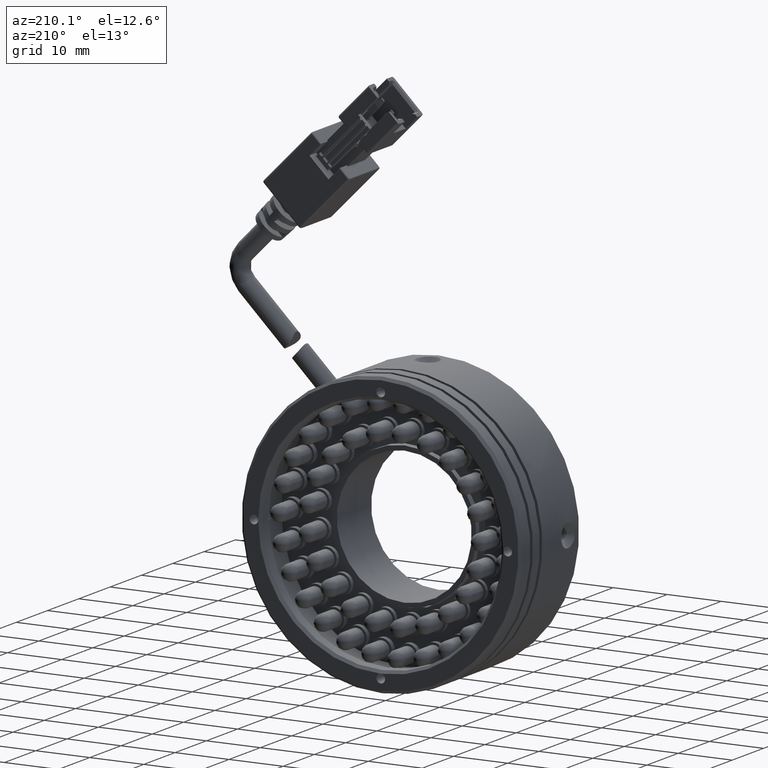
[diagram: clean part render]
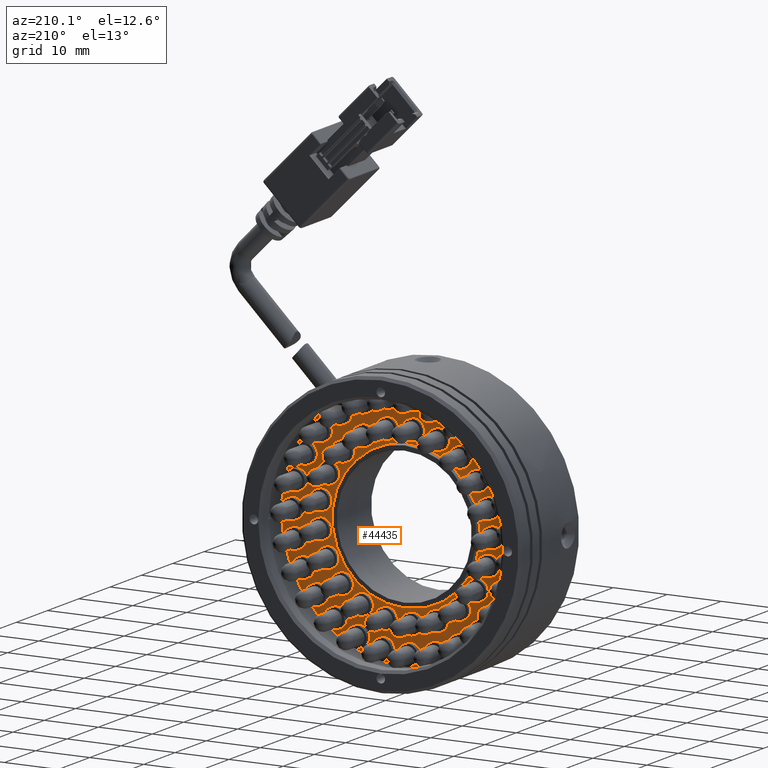
[diagram: same view with one face highlighted and labeled with its STEP entity id]
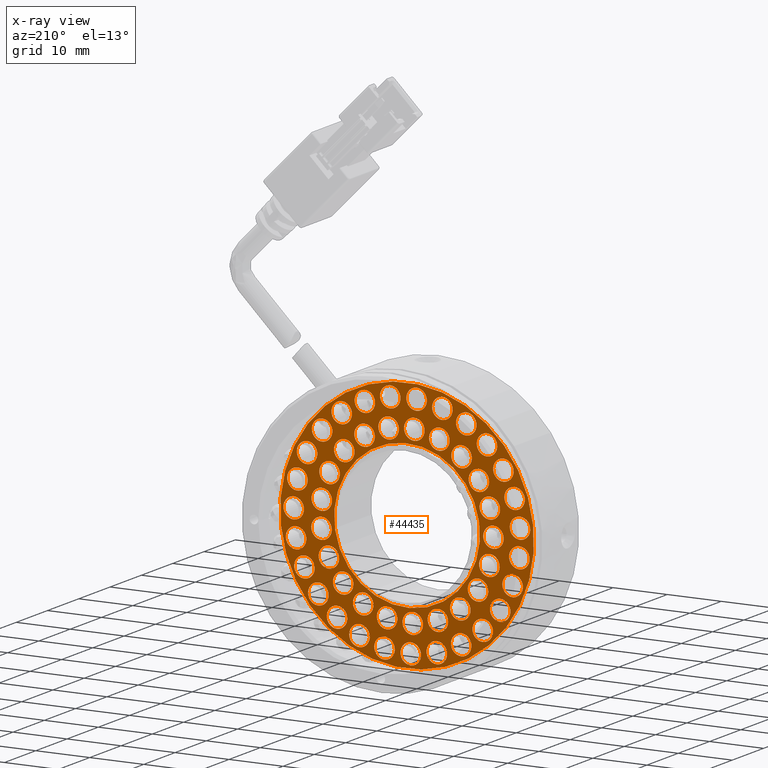
[diagram: x-ray of the same camera — body ghosted, the highlighted face saturated]
A machine part, auxiliary view. The second image highlights one B-rep face of the part: STEP entity #44435.
The next image is the same camera in x-ray: the body ghosted, the highlighted face saturated — about 0% of this face is hidden behind the body in this view.
In plain terms, the highlighted planar face has unit normal (0, -1, -0).
Its self-contained STEP definition (entity closure, byte-faithful):
#40 = EDGE_LOOP ( 'NONE', ( #45180, #35704 ) ) ;
#271 = FACE_BOUND ( 'NONE', #37725, .T. ) ;
#273 = DIRECTION ( 'NONE',  ( -0.9964823369000800300, 0.0000000000000000000, -0.08380305630557503800 ) ) ;
#293 = ORIENTED_EDGE ( 'NONE', *, *, #14784, .F. ) ;
#396 = VERTEX_POINT ( 'NONE', #26149 ) ;
#440 = VERTEX_POINT ( 'NONE', #21771 ) ;
#442 = AXIS2_PLACEMENT_3D ( 'NONE', #19975, #46350, #23719 ) ;
#478 = DIRECTION ( 'NONE',  ( -0.9964823369000800300, 0.0000000000000000000, -0.08380305630557498300 ) ) ;
#498 = ORIENTED_EDGE ( 'NONE', *, *, #4205, .F. ) ;
#549 = EDGE_LOOP ( 'NONE', ( #41906, #45452 ) ) ;
#579 = VERTEX_POINT ( 'NONE', #7631 ) ;
#614 = CARTESIAN_POINT ( 'NONE',  ( 14.89117897205807900, 4.580076170238128500, 13.90784564497379500 ) ) ;
#655 = CARTESIAN_POINT ( 'NONE',  ( -20.38551392721298700, 4.580076170238128500, -7.687612896666104600 ) ) ;
#670 = DIRECTION ( 'NONE',  ( -0.9964823369000801500, 0.0000000000000000000, -0.08380305630557502400 ) ) ;
#681 = DIRECTION ( 'NONE',  ( -1.152656876524891300E-021, 1.000000000000000000, 9.025018899253366500E-022 ) ) ;
#738 = CARTESIAN_POINT ( 'NONE',  ( -13.98047631714871900, 4.580076170238128500, -9.133067906006788300 ) ) ;
#846 = FACE_BOUND ( 'NONE', #3887, .T. ) ;
#900 = ORIENTED_EDGE ( 'NONE', *, *, #38243, .F. ) ;
#956 = EDGE_CURVE ( 'NONE', #2182, #10137, #13600, .T. ) ;
#1002 = CIRCLE ( 'NONE', #26096, 1.900000000001511400 ) ;
#1012 = AXIS2_PLACEMENT_3D ( 'NONE', #655, #26952, #4434 ) ;
#1042 = CARTESIAN_POINT ( 'NONE',  ( -2.603100659162442400, 4.580076170238128500, 20.92612907490169900 ) ) ;
#1102 = CIRCLE ( 'NONE', #36138, 1.900000000000863700 ) ;
#1220 = DIRECTION ( 'NONE',  ( -1.152656876524891300E-021, 1.000000000000000000, 9.025018899253366500E-022 ) ) ;
#1311 = EDGE_CURVE ( 'NONE', #26410, #31541, #21185, .T. ) ;
#1363 = EDGE_LOOP ( 'NONE', ( #23632, #14687 ) ) ;
#1377 = AXIS2_PLACEMENT_3D ( 'NONE', #39937, #17386, #43771 ) ;
#1434 = FACE_BOUND ( 'NONE', #34023, .T. ) ;
#1442 = AXIS2_PLACEMENT_3D ( 'NONE', #738, #27047, #4520 ) ;
#1498 = CIRCLE ( 'NONE', #41575, 1.900000000000177500 ) ;
#1530 = VERTEX_POINT ( 'NONE', #26559 ) ;
#1643 = ORIENTED_EDGE ( 'NONE', *, *, #48740, .F. ) ;
#1793 = EDGE_LOOP ( 'NONE', ( #14786, #16582 ) ) ;
#1848 = VERTEX_POINT ( 'NONE', #21704 ) ;
#1922 = EDGE_LOOP ( 'NONE', ( #18046, #19813 ) ) ;
#1981 = DIRECTION ( 'NONE',  ( -1.152656876524891300E-021, 1.000000000000000000, 9.025018899253366500E-022 ) ) ;
#2018 = DIRECTION ( 'NONE',  ( -1.152656876524891300E-021, 1.000000000000000000, 9.025018899253366500E-022 ) ) ;
#2026 = VERTEX_POINT ( 'NONE', #45682 ) ;
#2037 = ORIENTED_EDGE ( 'NONE', *, *, #24784, .F. ) ;
#2064 = VERTEX_POINT ( 'NONE', #29343 ) ;
#2078 = CARTESIAN_POINT ( 'NONE',  ( -14.19552819475613800, 4.580076170238128500, -4.695816096961787700 ) ) ;
#2094 = EDGE_CURVE ( 'NONE', #34856, #46240, #12209, .T. ) ;
#2182 = VERTEX_POINT ( 'NONE', #37917 ) ;
#2398 = DIRECTION ( 'NONE',  ( -1.152656876524891300E-021, 1.000000000000000000, 9.025018899253366500E-022 ) ) ;
#2462 = VERTEX_POINT ( 'NONE', #28781 ) ;
#2520 = CARTESIAN_POINT ( 'NONE',  ( 21.35269690864482300, 4.580076170238128500, 5.526137877552163700 ) ) ;
#2621 = FACE_BOUND ( 'NONE', #15246, .T. ) ;
#2660 = VERTEX_POINT ( 'NONE', #37030 ) ;
#2682 = VERTEX_POINT ( 'NONE', #31924 ) ;
#2763 = CIRCLE ( 'NONE', #14751, 1.900000000000736700 ) ;
#2826 = CIRCLE ( 'NONE', #19028, 1.900000000000337900 ) ;
#2926 = CARTESIAN_POINT ( 'NONE',  ( 8.892741670994723800, 4.580076170238128500, 10.82983727359978600 ) ) ;
#3089 = CARTESIAN_POINT ( 'NONE',  ( 9.090840787455613600, 4.580076170238128500, -10.93478881608550800 ) ) ;
#3140 = CARTESIAN_POINT ( 'NONE',  ( 5.082404580784493800, 4.580076170238128500, 19.33087177230465100 ) ) ;
#3163 = EDGE_CURVE ( 'NONE', #25503, #23795, #11947, .T. ) ;
#3217 = VERTEX_POINT ( 'NONE', #2926 ) ;
#3288 = CIRCLE ( 'NONE', #36782, 1.900000000000454700 ) ;
#3392 = ORIENTED_EDGE ( 'NONE', *, *, #40691, .F. ) ;
#3393 = CARTESIAN_POINT ( 'NONE',  ( 13.10578914070426900, 4.580076170238128500, -2.399805671933559600 ) ) ;
#3398 = CARTESIAN_POINT ( 'NONE',  ( -18.08586376727523500, 4.580076170238128500, -11.98715162663398600 ) ) ;
#3486 = VERTEX_POINT ( 'NONE', #39404 ) ;
#3661 = DIRECTION ( 'NONE',  ( -0.9964823369000800300, 0.0000000000000000000, -0.08380305630557533000 ) ) ;
#3770 = CIRCLE ( 'NONE', #30738, 1.900000000002028100 ) ;
#3807 = FACE_BOUND ( 'NONE', #10457, .T. ) ;
#3813 = VERTEX_POINT ( 'NONE', #33848 ) ;
#3887 = EDGE_LOOP ( 'NONE', ( #14678, #35795 ) ) ;
#4019 = ORIENTED_EDGE ( 'NONE', *, *, #26300, .F. ) ;
#4093 = EDGE_CURVE ( 'NONE', #6165, #33719, #10632, .T. ) ;
#4143 = DIRECTION ( 'NONE',  ( -1.152656876524891300E-021, 1.000000000000000000, 9.025018899253366500E-022 ) ) ;
#4151 = CIRCLE ( 'NONE', #29594, 1.900000000002129100 ) ;
#4200 = CARTESIAN_POINT ( 'NONE',  ( 0.3769177454027842800, 4.580076170238128500, 20.60868936125990600 ) ) ;
#4205 = EDGE_CURVE ( 'NONE', #10137, #2182, #7058, .T. ) ;
#4210 = VERTEX_POINT ( 'NONE', #33735 ) ;
#4362 = AXIS2_PLACEMENT_3D ( 'NONE', #37879, #15309, #41694 ) ;
#4391 = DIRECTION ( 'NONE',  ( -0.9964823369000800300, 0.0000000000000000000, -0.08380305630557503800 ) ) ;
#4401 = AXIS2_PLACEMENT_3D ( 'NONE', #31617, #9093, #35438 ) ;
#4434 = DIRECTION ( 'NONE',  ( -0.9964823369000800300, 0.0000000000000000000, -0.08380305630557514900 ) ) ;
#4480 = EDGE_CURVE ( 'NONE', #23795, #25503, #37054, .T. ) ;
#4520 = DIRECTION ( 'NONE',  ( -0.9964823369000800300, 0.0000000000000000000, -0.08380305630557484400 ) ) ;
#4624 = EDGE_LOOP ( 'NONE', ( #10502, #14656 ) ) ;
#4670 = EDGE_CURVE ( 'NONE', #5050, #36198, #42961, .T. ) ;
#4672 = CARTESIAN_POINT ( 'NONE',  ( -1.524647172020224200, 4.580076170238128500, -20.98894183765285200 ) ) ;
#4746 = CIRCLE ( 'NONE', #7833, 1.900000000000459800 ) ;
#4832 = EDGE_CURVE ( 'NONE', #39950, #32525, #34610, .T. ) ;
#4836 = DIRECTION ( 'NONE',  ( -0.9964823369000800300, 0.0000000000000000000, -0.08380305630557498300 ) ) ;
#4855 = AXIS2_PLACEMENT_3D ( 'NONE', #41933, #19313, #45710 ) ;
#4857 = VERTEX_POINT ( 'NONE', #37519 ) ;
#4862 = DIRECTION ( 'NONE',  ( -1.152656876524891300E-021, 1.000000000000000000, 9.025018899253366500E-022 ) ) ;
#4871 = EDGE_LOOP ( 'NONE', ( #29446, #41882 ) ) ;
#4887 = ORIENTED_EDGE ( 'NONE', *, *, #13267, .F. ) ;
#4900 = DIRECTION ( 'NONE',  ( -0.9964823369000801500, 0.0000000000000000000, -0.08380305630557506600 ) ) ;
#4950 = DIRECTION ( 'NONE',  ( 1.152656876524891300E-021, -1.000000000000000000, -9.025018899253366500E-022 ) ) ;
#4965 = FACE_BOUND ( 'NONE', #24864, .T. ) ;
#4996 = CARTESIAN_POINT ( 'NONE',  ( -14.28137512213339200, 4.580076170238128500, 4.735958807862336300 ) ) ;
#5050 = VERTEX_POINT ( 'NONE', #13468 ) ;
#5059 = CARTESIAN_POINT ( 'NONE',  ( -0.8432364767453662800, 4.580076170238128500, 1.316013914325325100E-014 ) ) ;
#5157 = DIRECTION ( 'NONE',  ( -1.152656876524891300E-021, 1.000000000000000000, 9.025018899253366500E-022 ) ) ;
#5167 = CARTESIAN_POINT ( 'NONE',  ( -15.64242714237866800, 4.580076170238128500, 14.89912600263049200 ) ) ;
#5289 = ORIENTED_EDGE ( 'NONE', *, *, #20648, .F. ) ;
#5314 = EDGE_CURVE ( 'NONE', #15347, #17400, #40885, .T. ) ;
#5416 = CIRCLE ( 'NONE', #33349, 23.50000000000000400 ) ;
#5425 = AXIS2_PLACEMENT_3D ( 'NONE', #45122, #22523, #48900 ) ;
#5477 = CARTESIAN_POINT ( 'NONE',  ( 3.334103439311888500, 4.580076170238128500, -20.58032631485016500 ) ) ;
#5631 = DIRECTION ( 'NONE',  ( -1.152656876524891300E-021, 1.000000000000000000, 9.025018899253366500E-022 ) ) ;
#5688 = CARTESIAN_POINT ( 'NONE',  ( 17.67442570085188800, 4.580076170238128500, 9.904351946308342000 ) ) ;
#5696 = CARTESIAN_POINT ( 'NONE',  ( -0.7097842190522906100, 4.580076170238128500, 21.08535488188228900 ) ) ;
#5938 = ORIENTED_EDGE ( 'NONE', *, *, #4670, .F. ) ;
#6003 = CIRCLE ( 'NONE', #45094, 1.900000000000337900 ) ;
#6132 = EDGE_CURVE ( 'NONE', #33791, #2660, #10075, .T. ) ;
#6135 = AXIS2_PLACEMENT_3D ( 'NONE', #4672, #30980, #8451 ) ;
#6156 = FACE_BOUND ( 'NONE', #19442, .T. ) ;
#6165 = VERTEX_POINT ( 'NONE', #32107 ) ;
#6178 = CARTESIAN_POINT ( 'NONE',  ( -18.08586376727523500, 4.580076170238128500, -11.98715162663398600 ) ) ;
#6199 = CIRCLE ( 'NONE', #4855, 1.900000000000820100 ) ;
#6214 = AXIS2_PLACEMENT_3D ( 'NONE', #16861, #43247, #20636 ) ;
#6219 = ORIENTED_EDGE ( 'NONE', *, *, #34053, .F. ) ;
#6259 = CARTESIAN_POINT ( 'NONE',  ( -6.552893077264838200, 4.580076170238128500, -14.94656554209529500 ) ) ;
#6303 = ORIENTED_EDGE ( 'NONE', *, *, #10207, .F. ) ;
#6352 = VERTEX_POINT ( 'NONE', #15183 ) ;
#6374 = AXIS2_PLACEMENT_3D ( 'NONE', #29259, #29094, #28937 ) ;
#6375 = CARTESIAN_POINT ( 'NONE',  ( 13.69225387134812200, 4.580076170238128500, -13.23952807855602400 ) ) ;
#6427 = EDGE_LOOP ( 'NONE', ( #19515, #11214 ) ) ;
#6439 = EDGE_CURVE ( 'NONE', #2682, #28054, #38252, .T. ) ;
#6446 = AXIS2_PLACEMENT_3D ( 'NONE', #6259, #32569, #10065 ) ;
#6465 = ORIENTED_EDGE ( 'NONE', *, *, #44427, .F. ) ;
#6489 = ORIENTED_EDGE ( 'NONE', *, *, #19758, .F. ) ;
#6543 = AXIS2_PLACEMENT_3D ( 'NONE', #40105, #17530, #43911 ) ;
#6594 = DIRECTION ( 'NONE',  ( -1.152656876524891300E-021, 1.000000000000000000, 9.025018899253366500E-022 ) ) ;
#6700 = ORIENTED_EDGE ( 'NONE', *, *, #11493, .F. ) ;
#6721 = DIRECTION ( 'NONE',  ( -1.152656876524891300E-021, 1.000000000000000000, 9.025018899253366500E-022 ) ) ;
#6755 = CARTESIAN_POINT ( 'NONE',  ( -21.63163485146611000, 4.580076170238128500, -2.973632965574531300 ) ) ;
#6971 = CIRCLE ( 'NONE', #29633, 1.900000000001876900 ) ;
#6996 = ORIENTED_EDGE ( 'NONE', *, *, #14404, .F. ) ;
#7023 = CARTESIAN_POINT ( 'NONE',  ( 19.70851044701917200, 4.580076170238128500, -4.315750036957144400 ) ) ;
#7038 = DIRECTION ( 'NONE',  ( -1.152656876524891300E-021, 1.000000000000000000, 9.025018899253366500E-022 ) ) ;
#7044 = VERTEX_POINT ( 'NONE', #24075 ) ;
#7058 = CIRCLE ( 'NONE', #38451, 1.900000000001476500 ) ;
#7198 = DIRECTION ( 'NONE',  ( -0.9964823369000800300, 0.0000000000000000000, -0.08380305630557489900 ) ) ;
#7229 = ORIENTED_EDGE ( 'NONE', *, *, #46392, .F. ) ;
#7352 = FACE_BOUND ( 'NONE', #41057, .T. ) ;
#7386 = EDGE_CURVE ( 'NONE', #28054, #2682, #6971, .T. ) ;
#7459 = ORIENTED_EDGE ( 'NONE', *, *, #20700, .F. ) ;
#7494 = CARTESIAN_POINT ( 'NONE',  ( 14.89117897205807900, 4.580076170238128500, 13.90784564497379500 ) ) ;
#7563 = CIRCLE ( 'NONE', #33241, 1.900000000000994900 ) ;
#7631 = CARTESIAN_POINT ( 'NONE',  ( 20.05257143631099500, 4.580076170238128500, -8.779751641287539600 ) ) ;
#7651 = CIRCLE ( 'NONE', #31650, 1.900000000001690600 ) ;
#7795 = AXIS2_PLACEMENT_3D ( 'NONE', #23732, #1220, #27507 ) ;
#7833 = AXIS2_PLACEMENT_3D ( 'NONE', #14361, #40747, #18134 ) ;
#7839 = CARTESIAN_POINT ( 'NONE',  ( -9.039197195159706800, 4.580076170238128500, 12.57721624096291200 ) ) ;
#7881 = AXIS2_PLACEMENT_3D ( 'NONE', #10741, #10672, #10174 ) ;
#7896 = CIRCLE ( 'NONE', #15958, 1.900000000001074400 ) ;
#7927 = DIRECTION ( 'NONE',  ( -1.152656876524891300E-021, 1.000000000000000000, 9.025018899253366500E-022 ) ) ;
#8023 = DIRECTION ( 'NONE',  ( -1.152656876524891300E-021, 1.000000000000000000, 9.025018899253366500E-022 ) ) ;
#8033 = VERTEX_POINT ( 'NONE', #3393 ) ;
#8038 = CARTESIAN_POINT ( 'NONE',  ( -8.811490147672547100, 4.580076170238128500, -12.44035493783344200 ) ) ;
#8148 = ORIENTED_EDGE ( 'NONE', *, *, #10500, .F. ) ;
#8189 = DIRECTION ( 'NONE',  ( -1.152656876524891300E-021, 1.000000000000000000, 9.025018899253366500E-022 ) ) ;
#8200 = AXIS2_PLACEMENT_3D ( 'NONE', #16585, #42958, #20340 ) ;
#8400 = DIRECTION ( 'NONE',  ( -1.152656876524891300E-021, 1.000000000000000000, 9.025018899253366500E-022 ) ) ;
#8416 = DIRECTION ( 'NONE',  ( -1.152656876524891300E-021, 1.000000000000000000, 9.025018899253366500E-022 ) ) ;
#8451 = DIRECTION ( 'NONE',  ( -0.9964823369000801500, 0.0000000000000000000, -0.08380305630557498300 ) ) ;
#8499 = FACE_BOUND ( 'NONE', #4624, .T. ) ;
#8550 = AXIS2_PLACEMENT_3D ( 'NONE', #37540, #14993, #41407 ) ;
#8626 = ORIENTED_EDGE ( 'NONE', *, *, #45794, .F. ) ;
#8770 = ORIENTED_EDGE ( 'NONE', *, *, #26597, .F. ) ;
#8809 = AXIS2_PLACEMENT_3D ( 'NONE', #5059, #4950, #4900 ) ;
#8878 = CARTESIAN_POINT ( 'NONE',  ( -6.824008423269229500, 4.580076170238128500, 14.84016060976678600 ) ) ;
#8911 = CARTESIAN_POINT ( 'NONE',  ( 9.175862796408230400, 4.580076170238128500, -13.62379466569605500 ) ) ;
#8972 = DIRECTION ( 'NONE',  ( -0.9964823369000801500, 0.0000000000000000000, -0.08380305630557492700 ) ) ;
#9089 = EDGE_CURVE ( 'NONE', #44987, #47507, #38269, .T. ) ;
#9093 = DIRECTION ( 'NONE',  ( -1.152656876524891300E-021, 1.000000000000000000, 9.025018899253366500E-022 ) ) ;
#9116 = AXIS2_PLACEMENT_3D ( 'NONE', #31700, #9165, #35499 ) ;
#9161 = CIRCLE ( 'NONE', #16117, 1.900000000000999300 ) ;
#9165 = DIRECTION ( 'NONE',  ( -1.152656876524891300E-021, 1.000000000000000000, 9.025018899253366500E-022 ) ) ;
#9166 = CARTESIAN_POINT ( 'NONE',  ( -8.446209517375850200, 4.580076170238128500, -15.10579134907595900 ) ) ;
#9259 = DIRECTION ( 'NONE',  ( -0.9964823369000799200, 0.0000000000000000000, -0.08380305630557588500 ) ) ;
#9286 = EDGE_LOOP ( 'NONE', ( #2037, #27478 ) ) ;
#9307 = EDGE_CURVE ( 'NONE', #32334, #30571, #37057, .T. ) ;
#9334 = AXIS2_PLACEMENT_3D ( 'NONE', #3398, #29713, #7198 ) ;
#9382 = EDGE_CURVE ( 'NONE', #25943, #12286, #7563, .T. ) ;
#9385 = EDGE_CURVE ( 'NONE', #36198, #5050, #17622, .T. ) ;
#9492 = DIRECTION ( 'NONE',  ( -0.9964823369000801500, 0.0000000000000000000, -0.08380305630557474700 ) ) ;
#9590 = CARTESIAN_POINT ( 'NONE',  ( 7.967652574504900700, 4.580076170238128500, -19.06222007339512100 ) ) ;
#9600 = DIRECTION ( 'NONE',  ( -1.152656876524891300E-021, 1.000000000000000000, 9.025018899253366500E-022 ) ) ;
#9601 = EDGE_CURVE ( 'NONE', #30168, #1530, #9892, .T. ) ;
#9613 = EDGE_CURVE ( 'NONE', #46240, #34856, #19892, .T. ) ;
#9704 = FACE_BOUND ( 'NONE', #549, .T. ) ;
#9723 = CARTESIAN_POINT ( 'NONE',  ( 12.60927507140571400, 4.580076170238128500, 1.131341260125278100 ) ) ;
#9745 = EDGE_CURVE ( 'NONE', #17400, #15347, #26877, .T. ) ;
#9892 = CIRCLE ( 'NONE', #6135, 1.900000000002028100 ) ;
#9929 = CARTESIAN_POINT ( 'NONE',  ( -10.70480658778343400, 4.580076170238128500, -12.59958074481409600 ) ) ;
#9996 = DIRECTION ( 'NONE',  ( -0.9964823369000800300, 0.0000000000000000000, -0.08380305630557489900 ) ) ;
#10065 = DIRECTION ( 'NONE',  ( -0.9964823369000800300, 0.0000000000000000000, -0.08380305630557524600 ) ) ;
#10075 = CIRCLE ( 'NONE', #32067, 1.900000000002131800 ) ;
#10137 = VERTEX_POINT ( 'NONE', #11596 ) ;
#10146 = EDGE_CURVE ( 'NONE', #440, #36504, #31579, .T. ) ;
#10174 = DIRECTION ( 'NONE',  ( -0.9964823369000800300, 0.0000000000000000000, -0.08380305630557478800 ) ) ;
#10187 = CARTESIAN_POINT ( 'NONE',  ( -24.26057139389725100, 4.580076170238128500, -1.969371823181000900 ) ) ;
#10207 = EDGE_CURVE ( 'NONE', #3813, #4210, #29240, .T. ) ;
#10288 = AXIS2_PLACEMENT_3D ( 'NONE', #32129, #9600, #35943 ) ;
#10308 = FACE_BOUND ( 'NONE', #38282, .T. ) ;
#10330 = CARTESIAN_POINT ( 'NONE',  ( -17.98216107497735900, 4.580076170238128500, -5.014267710923050500 ) ) ;
#10457 = EDGE_LOOP ( 'NONE', ( #21328, #41912 ) ) ;
#10500 = EDGE_CURVE ( 'NONE', #3217, #23810, #3288, .T. ) ;
#10502 = ORIENTED_EDGE ( 'NONE', *, *, #30440, .F. ) ;
#10535 = AXIS2_PLACEMENT_3D ( 'NONE', #36803, #14281, #40660 ) ;
#10569 = DIRECTION ( 'NONE',  ( -0.9964823369000800300, 0.0000000000000000000, -0.08380305630557508000 ) ) ;
#10632 = CIRCLE ( 'NONE', #18303, 1.900000000000559000 ) ;
#10672 = DIRECTION ( 'NONE',  ( -1.152656876524891300E-021, 1.000000000000000000, 9.025018899253366500E-022 ) ) ;
#10741 = CARTESIAN_POINT ( 'NONE',  ( 19.70851044701917200, 4.580076170238128500, -4.315750036957144400 ) ) ;
#10762 = CARTESIAN_POINT ( 'NONE',  ( 20.14981590155790100, 4.580076170238128500, 0.5401405759366138000 ) ) ;
#10806 = ORIENTED_EDGE ( 'NONE', *, *, #45521, .F. ) ;
#10845 = DIRECTION ( 'NONE',  ( -0.9964823369000800300, 0.0000000000000000000, -0.08380305630557478800 ) ) ;
#10865 = AXIS2_PLACEMENT_3D ( 'NONE', #45435, #22805, #273 ) ;
#10919 = CARTESIAN_POINT ( 'NONE',  ( -4.496417099272593800, 4.580076170238128500, 20.76690326792110500 ) ) ;
#10937 = FACE_BOUND ( 'NONE', #48217, .T. ) ;
#10943 = DIRECTION ( 'NONE',  ( -1.152656876524891300E-021, 1.000000000000000000, 9.025018899253366500E-022 ) ) ;
#10991 = CIRCLE ( 'NONE', #41066, 1.899999999999998400 ) ;
#11214 = ORIENTED_EDGE ( 'NONE', *, *, #10146, .F. ) ;
#11256 = AXIS2_PLACEMENT_3D ( 'NONE', #1042, #27350, #4836 ) ;
#11290 = ORIENTED_EDGE ( 'NONE', *, *, #31854, .F. ) ;
#11351 = DIRECTION ( 'NONE',  ( -0.9964823369000800300, 0.0000000000000000000, -0.08380305630557503800 ) ) ;
#11387 = CARTESIAN_POINT ( 'NONE',  ( 10.98415722756673300, 4.580076170238128500, -10.77556300910483400 ) ) ;
#11423 = VERTEX_POINT ( 'NONE', #13681 ) ;
#11426 = CIRCLE ( 'NONE', #4401, 1.900000000001709900 ) ;
#11436 = ORIENTED_EDGE ( 'NONE', *, *, #30229, .F. ) ;
#11493 = EDGE_CURVE ( 'NONE', #17551, #30010, #33004, .T. ) ;
#11511 = FACE_BOUND ( 'NONE', #35775, .T. ) ;
#11596 = CARTESIAN_POINT ( 'NONE',  ( -16.74997554712896200, 4.580076170238128500, -15.79968571663219900 ) ) ;
#11799 = CARTESIAN_POINT ( 'NONE',  ( 11.25968583371759000, 4.580076170238128500, 17.16156378500701900 ) ) ;
#11803 = CIRCLE ( 'NONE', #442, 1.900000000000994900 ) ;
#11825 = VERTEX_POINT ( 'NONE', #17611 ) ;
#11830 = VERTEX_POINT ( 'NONE', #6375 ) ;
#11947 = CIRCLE ( 'NONE', #38106, 13.49999999999999800 ) ;
#12002 = CIRCLE ( 'NONE', #8200, 1.900000000001288200 ) ;
#12068 = EDGE_CURVE ( 'NONE', #17779, #14084, #31727, .T. ) ;
#12092 = CARTESIAN_POINT ( 'NONE',  ( -10.87198720552228100, 4.580076170238128500, -18.45058695055751800 ) ) ;
#12122 = EDGE_CURVE ( 'NONE', #21113, #4857, #35331, .T. ) ;
#12201 = EDGE_CURVE ( 'NONE', #47507, #44987, #45974, .T. ) ;
#12209 = CIRCLE ( 'NONE', #22607, 1.899999999999999500 ) ;
#12242 = DIRECTION ( 'NONE',  ( -1.152656876524891300E-021, 1.000000000000000000, 9.025018899253366500E-022 ) ) ;
#12286 = VERTEX_POINT ( 'NONE', #19169 ) ;
#12306 = EDGE_CURVE ( 'NONE', #4210, #3813, #45382, .T. ) ;
#12510 = EDGE_CURVE ( 'NONE', #36504, #440, #21491, .T. ) ;
#12524 = EDGE_LOOP ( 'NONE', ( #8626, #39337 ) ) ;
#12643 = CARTESIAN_POINT ( 'NONE',  ( -13.70085456638474000, 4.580076170238128500, 17.75122056763984100 ) ) ;
#12644 = CARTESIAN_POINT ( 'NONE',  ( -16.03785873578218400, 4.580076170238128500, 8.733201505704503400 ) ) ;
#12654 = CARTESIAN_POINT ( 'NONE',  ( 13.63485226454583800, 4.580076170238128500, -6.810649484394575700 ) ) ;
#12655 = FACE_BOUND ( 'NONE', #39890, .T. ) ;
#12691 = DIRECTION ( 'NONE',  ( -0.9964823369000801500, 0.0000000000000000000, -0.08380305630557502400 ) ) ;
#12780 = EDGE_CURVE ( 'NONE', #30573, #40090, #33796, .T. ) ;
#12812 = DIRECTION ( 'NONE',  ( -1.152656876524891300E-021, 1.000000000000000000, 9.025018899253366500E-022 ) ) ;
#13033 = VERTEX_POINT ( 'NONE', #39193 ) ;
#13146 = DIRECTION ( 'NONE',  ( -1.152656876524891300E-021, 1.000000000000000000, 9.025018899253366500E-022 ) ) ;
#13180 = DIRECTION ( 'NONE',  ( -0.9964823369000801500, 0.0000000000000000000, -0.08380305630557506600 ) ) ;
#13218 = AXIS2_PLACEMENT_3D ( 'NONE', #38442, #15889, #42278 ) ;
#13228 = DIRECTION ( 'NONE',  ( -1.152656876524891300E-021, 1.000000000000000000, 9.025018899253366500E-022 ) ) ;
#13267 = EDGE_CURVE ( 'NONE', #17705, #23962, #22535, .T. ) ;
#13330 = DIRECTION ( 'NONE',  ( 1.152656876524891300E-021, -1.000000000000000000, -9.025018899253366500E-022 ) ) ;
#13394 = DIRECTION ( 'NONE',  ( -0.9964823369000800300, 0.0000000000000000000, -0.08380305630557528800 ) ) ;
#13431 = DIRECTION ( 'NONE',  ( -1.152656876524891300E-021, 1.000000000000000000, 9.025018899253366500E-022 ) ) ;
#13443 = EDGE_CURVE ( 'NONE', #11825, #23908, #19542, .T. ) ;
#13468 = CARTESIAN_POINT ( 'NONE',  ( 21.60182688713121700, 4.580076170238128500, -4.156524229976391800 ) ) ;
#13502 = CARTESIAN_POINT ( 'NONE',  ( -0.8432364767453662800, 4.580076170238128500, 1.316013914325325100E-014 ) ) ;
#13600 = CIRCLE ( 'NONE', #6374, 1.900000000001476500 ) ;
#13681 = CARTESIAN_POINT ( 'NONE',  ( -15.87379275725947100, 4.580076170238128500, -9.292293712987431700 ) ) ;
#13741 = DIRECTION ( 'NONE',  ( -0.9964823369000799200, 0.0000000000000000000, -0.08380305630557533000 ) ) ;
#13781 = DIRECTION ( 'NONE',  ( -1.152656876524891300E-021, 1.000000000000000000, 9.025018899253366500E-022 ) ) ;
#13797 = DIRECTION ( 'NONE',  ( -1.152656876524891300E-021, 1.000000000000000000, 9.025018899253366500E-022 ) ) ;
#13843 = FACE_BOUND ( 'NONE', #15695, .T. ) ;
#13868 = CIRCLE ( 'NONE', #37509, 1.900000000002033600 ) ;
#13923 = ORIENTED_EDGE ( 'NONE', *, *, #12068, .F. ) ;
#13993 = CARTESIAN_POINT ( 'NONE',  ( -16.84257376348630000, 4.580076170238128500, -0.1456241227123093500 ) ) ;
#14084 = VERTEX_POINT ( 'NONE', #39593 ) ;
#14145 = CIRCLE ( 'NONE', #48906, 1.900000000000454700 ) ;
#14262 = AXIS2_PLACEMENT_3D ( 'NONE', #11387, #37679, #15115 ) ;
#14281 = DIRECTION ( 'NONE',  ( -1.152656876524891300E-021, 1.000000000000000000, 9.025018899253366500E-022 ) ) ;
#14361 = CARTESIAN_POINT ( 'NONE',  ( -16.08884463486674600, 4.580076170238128500, -4.855041903942419500 ) ) ;
#14404 = EDGE_CURVE ( 'NONE', #26881, #35932, #22890, .T. ) ;
#14415 = AXIS2_PLACEMENT_3D ( 'NONE', #33448, #10943, #37263 ) ;
#14416 = AXIS2_PLACEMENT_3D ( 'NONE', #37325, #14773, #41168 ) ;
#14428 = EDGE_LOOP ( 'NONE', ( #6303, #18132 ) ) ;
#14519 = DIRECTION ( 'NONE',  ( -0.9964823369000800300, 0.0000000000000000000, -0.08380305630557502400 ) ) ;
#14599 = CARTESIAN_POINT ( 'NONE',  ( -11.80753812627442100, 4.580076170238128500, 17.91044637462044500 ) ) ;
#14634 = EDGE_CURVE ( 'NONE', #30010, #17551, #45303, .T. ) ;
#14656 = ORIENTED_EDGE ( 'NONE', *, *, #22979, .F. ) ;
#14673 = CARTESIAN_POINT ( 'NONE',  ( -16.19254732716384400, 4.580076170238128500, -11.82792581965329000 ) ) ;
#14678 = ORIENTED_EDGE ( 'NONE', *, *, #9613, .F. ) ;
#14687 = ORIENTED_EDGE ( 'NONE', *, *, #26296, .F. ) ;
#14751 = AXIS2_PLACEMENT_3D ( 'NONE', #40835, #18216, #44602 ) ;
#14754 = CARTESIAN_POINT ( 'NONE',  ( 0.9656075807898153500, 4.580076170238128500, -15.72502188844289400 ) ) ;
#14773 = DIRECTION ( 'NONE',  ( -1.152656876524891300E-021, 1.000000000000000000, 9.025018899253366500E-022 ) ) ;
#14784 = EDGE_CURVE ( 'NONE', #44787, #15551, #22353, .T. ) ;
#14786 = ORIENTED_EDGE ( 'NONE', *, *, #25714, .F. ) ;
#14928 = CARTESIAN_POINT ( 'NONE',  ( 4.163550625624076900, 4.580076170238128500, 20.92714097522117500 ) ) ;
#14946 = CIRCLE ( 'NONE', #37472, 1.900000000000654700 ) ;
#14993 = DIRECTION ( 'NONE',  ( -1.152656876524891300E-021, 1.000000000000000000, 9.025018899253366500E-022 ) ) ;
#15008 = FACE_BOUND ( 'NONE', #38730, .T. ) ;
#15019 = CIRCLE ( 'NONE', #9334, 1.900000000001243100 ) ;
#15075 = CARTESIAN_POINT ( 'NONE',  ( -18.73589020359676700, 4.580076170238128500, -0.3048499296929285700 ) ) ;
#15115 = DIRECTION ( 'NONE',  ( -0.9964823369000800300, 0.0000000000000000000, -0.08380305630557509400 ) ) ;
#15183 = CARTESIAN_POINT ( 'NONE',  ( 16.89242202092620500, 4.580076170238128500, -2.081354057972236900 ) ) ;
#15214 = ORIENTED_EDGE ( 'NONE', *, *, #956, .F. ) ;
#15246 = EDGE_LOOP ( 'NONE', ( #22107, #31462 ) ) ;
#15309 = DIRECTION ( 'NONE',  ( -1.152656876524891300E-021, 1.000000000000000000, 9.025018899253366500E-022 ) ) ;
#15314 = EDGE_CURVE ( 'NONE', #36256, #27691, #39377, .T. ) ;
#15347 = VERTEX_POINT ( 'NONE', #41974 ) ;
#15377 = CARTESIAN_POINT ( 'NONE',  ( -6.346662756393540900, 4.580076170238128500, -20.26603807320257600 ) ) ;
#15498 = AXIS2_PLACEMENT_3D ( 'NONE', #30941, #8416, #34765 ) ;
#15537 = DIRECTION ( 'NONE',  ( -0.9964823369000800300, 0.0000000000000000000, -0.08380305630557520500 ) ) ;
#15551 = VERTEX_POINT ( 'NONE', #16723 ) ;
#15567 = EDGE_CURVE ( 'NONE', #33094, #31393, #30992, .T. ) ;
#15627 = CARTESIAN_POINT ( 'NONE',  ( 15.52816870465688500, 4.580076170238128500, -6.651423677413908400 ) ) ;
#15637 = CARTESIAN_POINT ( 'NONE',  ( 6.074336134392569700, 4.580076170238128500, -19.22144588037589600 ) ) ;
#15684 = CARTESIAN_POINT ( 'NONE',  ( 2.574977977062359100, 4.580076170238128500, 15.63060491304736600 ) ) ;
#15695 = EDGE_LOOP ( 'NONE', ( #10806, #34281 ) ) ;
#15833 = ORIENTED_EDGE ( 'NONE', *, *, #15567, .F. ) ;
#15854 = DIRECTION ( 'NONE',  ( -0.9964823369000800300, 0.0000000000000000000, -0.08380305630557526000 ) ) ;
#15889 = DIRECTION ( 'NONE',  ( -1.152656876524891300E-021, 1.000000000000000000, 9.025018899253366500E-022 ) ) ;
#15958 = AXIS2_PLACEMENT_3D ( 'NONE', #614, #26901, #4391 ) ;
#16066 = CIRCLE ( 'NONE', #1012, 1.900000000000999300 ) ;
#16109 = ORIENTED_EDGE ( 'NONE', *, *, #13443, .F. ) ;
#16117 = AXIS2_PLACEMENT_3D ( 'NONE', #16987, #43376, #20755 ) ;
#16175 = FACE_BOUND ( 'NONE', #48880, .T. ) ;
#16287 = CARTESIAN_POINT ( 'NONE',  ( -23.65036427857241500, 4.580076170238128500, 1.741430481406725000 ) ) ;
#16292 = DIRECTION ( 'NONE',  ( -1.152656876524891300E-021, 1.000000000000000000, 9.025018899253366500E-022 ) ) ;
#16418 = DIRECTION ( 'NONE',  ( -1.152656876524891300E-021, 1.000000000000000000, 9.025018899253366500E-022 ) ) ;
#16427 = CARTESIAN_POINT ( 'NONE',  ( 18.15925499619881800, 4.580076170238128500, -8.938977448268302000 ) ) ;
#16435 = DIRECTION ( 'NONE',  ( -0.9964823369000801500, 0.0000000000000000000, -0.08380305630557496900 ) ) ;
#16579 = VERTEX_POINT ( 'NONE', #9166 ) ;
#16582 = ORIENTED_EDGE ( 'NONE', *, *, #48619, .F. ) ;
#16585 = CARTESIAN_POINT ( 'NONE',  ( 17.67442570085188800, 4.580076170238128500, 9.904351946308342000 ) ) ;
#16723 = CARTESIAN_POINT ( 'NONE',  ( 13.06238084218648000, 4.580076170238128500, 2.369349301131990200 ) ) ;
#16762 = CARTESIAN_POINT ( 'NONE',  ( -14.14454229567203200, 4.580076170238128500, 8.892427312685097000 ) ) ;
#16855 = DIRECTION ( 'NONE',  ( -1.152656876524891300E-021, 1.000000000000000000, 9.025018899253366500E-022 ) ) ;
#16859 = VERTEX_POINT ( 'NONE', #7839 ) ;
#16861 = CARTESIAN_POINT ( 'NONE',  ( 14.99910558081523800, 4.580076170238128500, -2.240579864952898100 ) ) ;
#16870 = CIRCLE ( 'NONE', #6446, 1.900000000000862800 ) ;
#16901 = EDGE_CURVE ( 'NONE', #44085, #11423, #31832, .T. ) ;
#16976 = DIRECTION ( 'NONE',  ( -1.152656876524891300E-021, 1.000000000000000000, 9.025018899253366500E-022 ) ) ;
#16987 = CARTESIAN_POINT ( 'NONE',  ( -20.38551392721298700, 4.580076170238128500, -7.687612896666104600 ) ) ;
#17005 = PLANE ( 'NONE',  #39293 ) ;
#17126 = AXIS2_PLACEMENT_3D ( 'NONE', #8878, #35209, #12691 ) ;
#17135 = AXIS2_PLACEMENT_3D ( 'NONE', #27374, #4862, #31172 ) ;
#17186 = DIRECTION ( 'NONE',  ( 1.152656876524891500E-021, -1.000000000000000000, -9.025018899253368400E-022 ) ) ;
#17287 = AXIS2_PLACEMENT_3D ( 'NONE', #14599, #40994, #18395 ) ;
#17386 = DIRECTION ( 'NONE',  ( -1.152656876524891300E-021, 1.000000000000000000, 9.025018899253366500E-022 ) ) ;
#17394 = FACE_BOUND ( 'NONE', #24486, .T. ) ;
#17400 = VERTEX_POINT ( 'NONE', #3089 ) ;
#17530 = DIRECTION ( 'NONE',  ( -1.152656876524891300E-021, 1.000000000000000000, 9.025018899253366500E-022 ) ) ;
#17551 = VERTEX_POINT ( 'NONE', #15075 ) ;
#17611 = CARTESIAN_POINT ( 'NONE',  ( 8.869037461006103100, 4.580076170238128500, 19.64932338626594400 ) ) ;
#17622 = CIRCLE ( 'NONE', #38301, 1.900000000001897700 ) ;
#17672 = AXIS2_PLACEMENT_3D ( 'NONE', #42326, #19710, #46118 ) ;
#17694 = EDGE_CURVE ( 'NONE', #16579, #44402, #48860, .T. ) ;
#17705 = VERTEX_POINT ( 'NONE', #4996 ) ;
#17742 = CARTESIAN_POINT ( 'NONE',  ( 2.574977977062359100, 4.580076170238128500, 15.63060491304736600 ) ) ;
#17779 = VERTEX_POINT ( 'NONE', #46709 ) ;
#17805 = DIRECTION ( 'NONE',  ( -0.9964823369000801500, 0.0000000000000000000, -0.08380305630557509400 ) ) ;
#18046 = ORIENTED_EDGE ( 'NONE', *, *, #17694, .F. ) ;
#18132 = ORIENTED_EDGE ( 'NONE', *, *, #12306, .F. ) ;
#18134 = DIRECTION ( 'NONE',  ( -0.9964823369000800300, 0.0000000000000000000, -0.08380305630557521900 ) ) ;
#18209 = ORIENTED_EDGE ( 'NONE', *, *, #6132, .F. ) ;
#18216 = DIRECTION ( 'NONE',  ( -1.152656876524891300E-021, 1.000000000000000000, 9.025018899253366500E-022 ) ) ;
#18224 = ORIENTED_EDGE ( 'NONE', *, *, #23030, .F. ) ;
#18303 = AXIS2_PLACEMENT_3D ( 'NONE', #37876, #37708, #37594 ) ;
#18352 = CARTESIAN_POINT ( 'NONE',  ( -0.8432364767453662800, 4.580076170238128500, 1.316013914325325100E-014 ) ) ;
#18395 = DIRECTION ( 'NONE',  ( -0.9964823369000800300, 0.0000000000000000000, -0.08380305630557487200 ) ) ;
#18561 = FACE_BOUND ( 'NONE', #35422, .T. ) ;
#18760 = ORIENTED_EDGE ( 'NONE', *, *, #5314, .F. ) ;
#18796 = AXIS2_PLACEMENT_3D ( 'NONE', #45670, #23048, #478 ) ;
#18857 = EDGE_CURVE ( 'NONE', #41698, #579, #13868, .T. ) ;
#18870 = VERTEX_POINT ( 'NONE', #12644 ) ;
#18932 = CARTESIAN_POINT ( 'NONE',  ( -4.077401817744719100, 4.580076170238128500, 15.78449158342070100 ) ) ;
#19028 = AXIS2_PLACEMENT_3D ( 'NONE', #35655, #13146, #39487 ) ;
#19029 = EDGE_CURVE ( 'NONE', #41497, #7044, #39778, .T. ) ;
#19073 = VERTEX_POINT ( 'NONE', #10330 ) ;
#19085 = AXIS2_PLACEMENT_3D ( 'NONE', #35739, #13228, #39595 ) ;
#19115 = FACE_BOUND ( 'NONE', #44630, .T. ) ;
#19162 = DIRECTION ( 'NONE',  ( -0.9964823369000800300, 0.0000000000000000000, -0.08380305630557434400 ) ) ;
#19169 = CARTESIAN_POINT ( 'NONE',  ( 4.752240461012101000, 4.580076170238128500, -15.40657027448154200 ) ) ;
#19221 = AXIS2_PLACEMENT_3D ( 'NONE', #16762, #43162, #20535 ) ;
#19313 = DIRECTION ( 'NONE',  ( -1.152656876524891300E-021, 1.000000000000000000, 9.025018899253366500E-022 ) ) ;
#19347 = EDGE_LOOP ( 'NONE', ( #20537, #6465 ) ) ;
#19418 = VERTEX_POINT ( 'NONE', #27843 ) ;
#19442 = EDGE_LOOP ( 'NONE', ( #8148, #8770 ) ) ;
#19492 = DIRECTION ( 'NONE',  ( -0.9964823369000800300, 0.0000000000000000000, -0.08380305630557498300 ) ) ;
#19515 = ORIENTED_EDGE ( 'NONE', *, *, #12510, .F. ) ;
#19542 = CIRCLE ( 'NONE', #17135, 1.900000000000654700 ) ;
#19702 = DIRECTION ( 'NONE',  ( -1.152656876524891300E-021, 1.000000000000000000, 9.025018899253366500E-022 ) ) ;
#19710 = DIRECTION ( 'NONE',  ( -1.152656876524891300E-021, 1.000000000000000000, 9.025018899253366500E-022 ) ) ;
#19711 = FACE_BOUND ( 'NONE', #24701, .T. ) ;
#19724 = DIRECTION ( 'NONE',  ( -1.152656876524891300E-021, 1.000000000000000000, 9.025018899253366500E-022 ) ) ;
#19758 = EDGE_CURVE ( 'NONE', #11830, #47476, #27280, .T. ) ;
#19813 = ORIENTED_EDGE ( 'NONE', *, *, #37388, .F. ) ;
#19892 = CIRCLE ( 'NONE', #11256, 1.899999999999999500 ) ;
#19975 = CARTESIAN_POINT ( 'NONE',  ( 2.858924020900958800, 4.580076170238128500, -15.56579608146221700 ) ) ;
#20003 = EDGE_CURVE ( 'NONE', #25998, #25768, #12002, .T. ) ;
#20121 = CARTESIAN_POINT ( 'NONE',  ( 17.47888675157267000, 4.580076170238128500, -12.92107646459448100 ) ) ;
#20155 = CARTESIAN_POINT ( 'NONE',  ( 15.40180082692030400, 4.580076170238128500, 7.232280893333918200 ) ) ;
#20198 = CIRCLE ( 'NONE', #8550, 1.900000000000559000 ) ;
#20209 = DIRECTION ( 'NONE',  ( -0.9964823369000800300, 0.0000000000000000000, -0.08380305630557473300 ) ) ;
#20214 = DIRECTION ( 'NONE',  ( -1.152656876524891300E-021, 1.000000000000000000, 9.025018899253366500E-022 ) ) ;
#20300 = FACE_BOUND ( 'NONE', #44785, .T. ) ;
#20306 = EDGE_LOOP ( 'NONE', ( #6996, #40059 ) ) ;
#20316 = EDGE_CURVE ( 'NONE', #11423, #44085, #39103, .T. ) ;
#20340 = DIRECTION ( 'NONE',  ( -0.9964823369000801500, 0.0000000000000000000, -0.08380305630557474700 ) ) ;
#20398 = CARTESIAN_POINT ( 'NONE',  ( -0.8432364767453662800, 4.580076170238128500, 1.316013914325325100E-014 ) ) ;
#20488 = ORIENTED_EDGE ( 'NONE', *, *, #39213, .F. ) ;
#20535 = DIRECTION ( 'NONE',  ( -0.9964823369000801500, 0.0000000000000000000, -0.08380305630557494100 ) ) ;
#20537 = ORIENTED_EDGE ( 'NONE', *, *, #40067, .F. ) ;
#20636 = DIRECTION ( 'NONE',  ( -0.9964823369000800300, 0.0000000000000000000, -0.08380305630557506600 ) ) ;
#20648 = EDGE_CURVE ( 'NONE', #39231, #35302, #30190, .T. ) ;
#20700 = EDGE_CURVE ( 'NONE', #33719, #6165, #20198, .T. ) ;
#20755 = DIRECTION ( 'NONE',  ( -0.9964823369000800300, 0.0000000000000000000, -0.08380305630557514900 ) ) ;
#20790 = CARTESIAN_POINT ( 'NONE',  ( -1.893651521374830200, 4.580076170238128500, -15.96548239903880500 ) ) ;
#20871 = ORIENTED_EDGE ( 'NONE', *, *, #38610, .F. ) ;
#20936 = DIRECTION ( 'NONE',  ( -1.152656876524891300E-021, 1.000000000000000000, 9.025018899253366500E-022 ) ) ;
#21063 = VERTEX_POINT ( 'NONE', #48420 ) ;
#21083 = ORIENTED_EDGE ( 'NONE', *, *, #4832, .F. ) ;
#21113 = VERTEX_POINT ( 'NONE', #33546 ) ;
#21185 = CIRCLE ( 'NONE', #24742, 1.900000000000943600 ) ;
#21216 = ORIENTED_EDGE ( 'NONE', *, *, #35257, .F. ) ;
#21328 = ORIENTED_EDGE ( 'NONE', *, *, #41127, .F. ) ;
#21377 = CIRCLE ( 'NONE', #38391, 1.900000000002033600 ) ;
#21432 = AXIS2_PLACEMENT_3D ( 'NONE', #15684, #42094, #19492 ) ;
#21436 = VERTEX_POINT ( 'NONE', #47232 ) ;
#21489 = FACE_BOUND ( 'NONE', #6427, .T. ) ;
#21491 = CIRCLE ( 'NONE', #30551, 1.900000000002186600 ) ;
#21500 = DIRECTION ( 'NONE',  ( -0.9964823369000800300, 0.0000000000000000000, -0.08380305630557498300 ) ) ;
#21586 = CARTESIAN_POINT ( 'NONE',  ( 22.04313234166975400, 4.580076170238128500, 0.6993663829173498700 ) ) ;
#21704 = CARTESIAN_POINT ( 'NONE',  ( -0.2907689375244155700, 4.580076170238128500, 16.10294319738188700 ) ) ;
#21771 = CARTESIAN_POINT ( 'NONE',  ( 14.01952084044394200, 4.580076170238128500, -16.35723880673075900 ) ) ;
#21933 = CARTESIAN_POINT ( 'NONE',  ( -1.524647172020224200, 4.580076170238128500, -20.98894183765285200 ) ) ;
#21943 = CARTESIAN_POINT ( 'NONE',  ( -20.57280439918100600, 4.580076170238128500, 10.92536408436326500 ) ) ;
#22005 = CARTESIAN_POINT ( 'NONE',  ( 2.858924020900958800, 4.580076170238128500, -15.56579608146221700 ) ) ;
#22029 = ORIENTED_EDGE ( 'NONE', *, *, #22258, .F. ) ;
#22044 = AXIS2_PLACEMENT_3D ( 'NONE', #28143, #5631, #31965 ) ;
#22076 = CARTESIAN_POINT ( 'NONE',  ( 7.030317976951647700, 4.580076170238128500, 13.92864459538932900 ) ) ;
#22107 = ORIENTED_EDGE ( 'NONE', *, *, #9601, .F. ) ;
#22115 = DIRECTION ( 'NONE',  ( -0.9964823369000800300, 0.0000000000000000000, -0.08380305630557505200 ) ) ;
#22144 = ORIENTED_EDGE ( 'NONE', *, *, #26254, .F. ) ;
#22237 = EDGE_LOOP ( 'NONE', ( #37131, #11290 ) ) ;
#22258 = EDGE_CURVE ( 'NONE', #19418, #396, #1102, .T. ) ;
#22353 = CIRCLE ( 'NONE', #33816, 1.900000000000694900 ) ;
#22491 = CIRCLE ( 'NONE', #34937, 1.899999999999998400 ) ;
#22523 = DIRECTION ( 'NONE',  ( -1.152656876524891300E-021, 1.000000000000000000, 9.025018899253366500E-022 ) ) ;
#22535 = CIRCLE ( 'NONE', #5425, 1.900000000000191800 ) ;
#22607 = AXIS2_PLACEMENT_3D ( 'NONE', #47854, #47961, #47682 ) ;
#22657 = FACE_BOUND ( 'NONE', #42259, .T. ) ;
#22776 = EDGE_LOOP ( 'NONE', ( #22144, #44636 ) ) ;
#22805 = DIRECTION ( 'NONE',  ( -1.152656876524891300E-021, 1.000000000000000000, 9.025018899253366500E-022 ) ) ;
#22839 = VERTEX_POINT ( 'NONE', #2078 ) ;
#22890 = CIRCLE ( 'NONE', #17126, 1.899999999999998400 ) ;
#22927 = CIRCLE ( 'NONE', #27315, 1.900000000001288200 ) ;
#22979 = EDGE_CURVE ( 'NONE', #43177, #35041, #2763, .T. ) ;
#22995 = CIRCLE ( 'NONE', #32091, 1.900000000002186600 ) ;
#23030 = EDGE_CURVE ( 'NONE', #31393, #33094, #23915, .T. ) ;
#23041 = CARTESIAN_POINT ( 'NONE',  ( 16.84901372240817000, 4.580076170238128500, 2.687800915093292000 ) ) ;
#23048 = DIRECTION ( 'NONE',  ( -1.152656876524891300E-021, 1.000000000000000000, 9.025018899253366500E-022 ) ) ;
#23130 = CARTESIAN_POINT ( 'NONE',  ( 17.81519400690713100, 4.580076170238128500, -4.474975843937895300 ) ) ;
#23203 = DIRECTION ( 'NONE',  ( -1.152656876524891300E-021, 1.000000000000000000, 9.025018899253366500E-022 ) ) ;
#23210 = CARTESIAN_POINT ( 'NONE',  ( -16.17469156224373700, 4.580076170238128500, 4.576733000881727500 ) ) ;
#23608 = AXIS2_PLACEMENT_3D ( 'NONE', #48790, #26158, #3661 ) ;
#23632 = ORIENTED_EDGE ( 'NONE', *, *, #9307, .F. ) ;
#23719 = DIRECTION ( 'NONE',  ( -0.9964823369000799200, 0.0000000000000000000, -0.08380305630557580200 ) ) ;
#23732 = CARTESIAN_POINT ( 'NONE',  ( -6.552893077264838200, 4.580076170238128500, -14.94656554209529500 ) ) ;
#23783 = FACE_BOUND ( 'NONE', #9286, .T. ) ;
#23795 = VERTEX_POINT ( 'NONE', #9723 ) ;
#23810 = VERTEX_POINT ( 'NONE', #32248 ) ;
#23908 = VERTEX_POINT ( 'NONE', #3140 ) ;
#23915 = CIRCLE ( 'NONE', #17287, 1.900000000000167300 ) ;
#23962 = VERTEX_POINT ( 'NONE', #26132 ) ;
#24005 = ORIENTED_EDGE ( 'NONE', *, *, #9089, .F. ) ;
#24075 = CARTESIAN_POINT ( 'NONE',  ( -19.97918020738662300, 4.580076170238128500, -12.14637743361468300 ) ) ;
#24131 = DIRECTION ( 'NONE',  ( -0.9964823369000800300, 0.0000000000000000000, -0.08380305630557505200 ) ) ;
#24192 = CARTESIAN_POINT ( 'NONE',  ( -4.659576637153827000, 4.580076170238128500, -14.78733973511462800 ) ) ;
#24292 = AXIS2_PLACEMENT_3D ( 'NONE', #24477, #1981, #28280 ) ;
#24385 = VERTEX_POINT ( 'NONE', #10187 ) ;
#24477 = CARTESIAN_POINT ( 'NONE',  ( -2.184085377634567200, 4.580076170238128500, 15.94371739040129500 ) ) ;
#24486 = EDGE_LOOP ( 'NONE', ( #24005, #37124 ) ) ;
#24518 = CARTESIAN_POINT ( 'NONE',  ( 18.25649946144604400, 4.580076170238128500, 0.3809147689558778900 ) ) ;
#24520 = CARTESIAN_POINT ( 'NONE',  ( 15.58557031146039600, 4.580076170238128500, -13.08030227157525300 ) ) ;
#24533 = DIRECTION ( 'NONE',  ( -0.9964823369000801500, 0.0000000000000000000, -0.08380305630557533000 ) ) ;
#24535 = EDGE_CURVE ( 'NONE', #47496, #37530, #46322, .T. ) ;
#24559 = VERTEX_POINT ( 'NONE', #14928 ) ;
#24571 = AXIS2_PLACEMENT_3D ( 'NONE', #37217, #37147, #37040 ) ;
#24663 = ORIENTED_EDGE ( 'NONE', *, *, #19029, .F. ) ;
#24701 = EDGE_LOOP ( 'NONE', ( #42478, #24716 ) ) ;
#24716 = ORIENTED_EDGE ( 'NONE', *, *, #45951, .F. ) ;
#24742 = AXIS2_PLACEMENT_3D ( 'NONE', #31131, #30965, #30823 ) ;
#24746 = AXIS2_PLACEMENT_3D ( 'NONE', #6755, #33074, #10569 ) ;
#24754 = ORIENTED_EDGE ( 'NONE', *, *, #25580, .F. ) ;
#24784 = EDGE_CURVE ( 'NONE', #27691, #36256, #33854, .T. ) ;
#24811 = EDGE_LOOP ( 'NONE', ( #40107, #24663 ) ) ;
#24864 = EDGE_LOOP ( 'NONE', ( #36494, #40084 ) ) ;
#24876 = AXIS2_PLACEMENT_3D ( 'NONE', #42812, #20214, #46583 ) ;
#24918 = CARTESIAN_POINT ( 'NONE',  ( 12.12620440033161100, 4.580076170238128500, -16.51646461371153400 ) ) ;
#24986 = FACE_BOUND ( 'NONE', #34026, .T. ) ;
#24996 = CIRCLE ( 'NONE', #14416, 1.900000000000495700 ) ;
#25079 = CARTESIAN_POINT ( 'NONE',  ( 15.78110926074045200, 4.580076170238128500, 9.745126139327641800 ) ) ;
#25089 = ORIENTED_EDGE ( 'NONE', *, *, #6439, .F. ) ;
#25287 = VERTEX_POINT ( 'NONE', #36543 ) ;
#25338 = CIRCLE ( 'NONE', #4362, 1.900000000000694900 ) ;
#25344 = CIRCLE ( 'NONE', #22044, 1.900000000000459800 ) ;
#25358 = ORIENTED_EDGE ( 'NONE', *, *, #9745, .F. ) ;
#25503 = VERTEX_POINT ( 'NONE', #42308 ) ;
#25580 = EDGE_CURVE ( 'NONE', #579, #41698, #21377, .T. ) ;
#25665 = DIRECTION ( 'NONE',  ( -0.9964823369000801500, 0.0000000000000000000, -0.08380305630557498300 ) ) ;
#25714 = EDGE_CURVE ( 'NONE', #2462, #37611, #6003, .T. ) ;
#25755 = DIRECTION ( 'NONE',  ( -0.9964823369000799200, 0.0000000000000000000, -0.08380305630557580200 ) ) ;
#25768 = VERTEX_POINT ( 'NONE', #25079 ) ;
#25827 = DIRECTION ( 'NONE',  ( -0.9964823369000800300, 0.0000000000000000000, -0.08380305630557498300 ) ) ;
#25943 = VERTEX_POINT ( 'NONE', #14754 ) ;
#25998 = VERTEX_POINT ( 'NONE', #30185 ) ;
#26096 = AXIS2_PLACEMENT_3D ( 'NONE', #26661, #4143, #30459 ) ;
#26132 = CARTESIAN_POINT ( 'NONE',  ( -18.06800800235408000, 4.580076170238128500, 4.417507193901118800 ) ) ;
#26149 = CARTESIAN_POINT ( 'NONE',  ( 9.366369393606577300, 4.580076170238128500, 17.00233797802635400 ) ) ;
#26158 = DIRECTION ( 'NONE',  ( -1.152656876524891300E-021, 1.000000000000000000, 9.025018899253366500E-022 ) ) ;
#26160 = FACE_BOUND ( 'NONE', #43243, .T. ) ;
#26223 = AXIS2_PLACEMENT_3D ( 'NONE', #13993, #40369, #17805 ) ;
#26254 = EDGE_CURVE ( 'NONE', #19073, #22839, #25344, .T. ) ;
#26292 = EDGE_CURVE ( 'NONE', #47476, #11830, #4151, .T. ) ;
#26296 = EDGE_CURVE ( 'NONE', #30571, #32334, #22995, .T. ) ;
#26300 = EDGE_CURVE ( 'NONE', #1848, #37669, #32999, .T. ) ;
#26359 = VERTEX_POINT ( 'NONE', #2520 ) ;
#26410 = VERTEX_POINT ( 'NONE', #44388 ) ;
#26559 = CARTESIAN_POINT ( 'NONE',  ( 0.3686692680919493300, 4.580076170238128500, -20.82971603067209200 ) ) ;
#26597 = EDGE_CURVE ( 'NONE', #23810, #3217, #14145, .T. ) ;
#26661 = CARTESIAN_POINT ( 'NONE',  ( 19.45938046853316500, 4.580076170238128500, 5.366912070571443000 ) ) ;
#26785 = CARTESIAN_POINT ( 'NONE',  ( -18.49219748710184100, 4.580076170238128500, -7.528387089685428400 ) ) ;
#26813 = CIRCLE ( 'NONE', #24746, 1.900000000000762900 ) ;
#26877 = CIRCLE ( 'NONE', #10288, 1.900000000000969800 ) ;
#26881 = VERTEX_POINT ( 'NONE', #32889 ) ;
#26901 = DIRECTION ( 'NONE',  ( -1.152656876524891300E-021, 1.000000000000000000, 9.025018899253366500E-022 ) ) ;
#26952 = DIRECTION ( 'NONE',  ( -1.152656876524891300E-021, 1.000000000000000000, 9.025018899253366500E-022 ) ) ;
#26974 = DIRECTION ( 'NONE',  ( -0.9964823369000800300, 0.0000000000000000000, -0.08380305630557517700 ) ) ;
#27047 = DIRECTION ( 'NONE',  ( -1.152656876524891300E-021, 1.000000000000000000, 9.025018899253366500E-022 ) ) ;
#27280 = CIRCLE ( 'NONE', #42966, 1.900000000002129100 ) ;
#27315 = AXIS2_PLACEMENT_3D ( 'NONE', #5688, #32009, #9492 ) ;
#27329 = FACE_BOUND ( 'NONE', #39876, .T. ) ;
#27350 = DIRECTION ( 'NONE',  ( -1.152656876524891300E-021, 1.000000000000000000, 9.025018899253366500E-022 ) ) ;
#27370 = CARTESIAN_POINT ( 'NONE',  ( -19.86373139835104200, 4.580076170238128500, 2.059882095368000200 ) ) ;
#27374 = CARTESIAN_POINT ( 'NONE',  ( 6.975721020895298000, 4.580076170238128500, 19.49009757928529800 ) ) ;
#27478 = ORIENTED_EDGE ( 'NONE', *, *, #15314, .F. ) ;
#27507 = DIRECTION ( 'NONE',  ( -0.9964823369000800300, 0.0000000000000000000, -0.08380305630557524600 ) ) ;
#27623 = CARTESIAN_POINT ( 'NONE',  ( 16.78449541216930300, 4.580076170238128500, 14.06707145195447800 ) ) ;
#27678 = CARTESIAN_POINT ( 'NONE',  ( -21.63163485146611000, 4.580076170238128500, -2.973632965574531300 ) ) ;
#27684 = AXIS2_PLACEMENT_3D ( 'NONE', #29576, #7038, #33351 ) ;
#27691 = VERTEX_POINT ( 'NONE', #16287 ) ;
#27843 = CARTESIAN_POINT ( 'NONE',  ( 13.15300227382860300, 4.580076170238128500, 17.32078959198768300 ) ) ;
#28054 = VERTEX_POINT ( 'NONE', #45124 ) ;
#28143 = CARTESIAN_POINT ( 'NONE',  ( -16.08884463486674600, 4.580076170238128500, -4.855041903942419500 ) ) ;
#28208 = ORIENTED_EDGE ( 'NONE', *, *, #18857, .F. ) ;
#28280 = DIRECTION ( 'NONE',  ( -0.9964823369000800300, 0.0000000000000000000, -0.08380305630557498300 ) ) ;
#28325 = DIRECTION ( 'NONE',  ( -0.9964823369000800300, 0.0000000000000000000, -0.08380305630557509400 ) ) ;
#28512 = FACE_BOUND ( 'NONE', #22776, .T. ) ;
#28701 = DIRECTION ( 'NONE',  ( -0.9964823369000800300, 0.0000000000000000000, -0.08380305630557528800 ) ) ;
#28781 = CARTESIAN_POINT ( 'NONE',  ( -22.64830828171944800, 4.580076170238128500, 6.513254862895121500 ) ) ;
#28895 = ORIENTED_EDGE ( 'NONE', *, *, #9382, .F. ) ;
#28937 = DIRECTION ( 'NONE',  ( -0.9964823369000800300, 0.0000000000000000000, -0.08380305630557556600 ) ) ;
#28965 = CIRCLE ( 'NONE', #6214, 1.900000000000820100 ) ;
#29089 = CARTESIAN_POINT ( 'NONE',  ( -4.930691983159078100, 4.580076170238128500, 14.99938641674737700 ) ) ;
#29094 = DIRECTION ( 'NONE',  ( -1.152656876524891300E-021, 1.000000000000000000, 9.025018899253366500E-022 ) ) ;
#29110 = FACE_BOUND ( 'NONE', #38112, .T. ) ;
#29128 = CARTESIAN_POINT ( 'NONE',  ( 6.975721020895298000, 4.580076170238128500, 19.49009757928529800 ) ) ;
#29129 = CIRCLE ( 'NONE', #6543, 1.900000000001511400 ) ;
#29147 = VERTEX_POINT ( 'NONE', #15627 ) ;
#29153 = EDGE_CURVE ( 'NONE', #37127, #3486, #16066, .T. ) ;
#29240 = CIRCLE ( 'NONE', #47234, 1.899999999999999200 ) ;
#29254 = CARTESIAN_POINT ( 'NONE',  ( -16.84257376348630000, 4.580076170238128500, -0.1456241227123093500 ) ) ;
#29259 = CARTESIAN_POINT ( 'NONE',  ( -14.85665910701733800, 4.580076170238128500, -15.64045990965148100 ) ) ;
#29343 = CARTESIAN_POINT ( 'NONE',  ( -12.76530364563411800, 4.580076170238128500, -18.60981275753825400 ) ) ;
#29446 = ORIENTED_EDGE ( 'NONE', *, *, #12780, .F. ) ;
#29507 = AXIS2_PLACEMENT_3D ( 'NONE', #24918, #2398, #28701 ) ;
#29576 = CARTESIAN_POINT ( 'NONE',  ( 3.334103439311888500, 4.580076170238128500, -20.58032631485016500 ) ) ;
#29594 = AXIS2_PLACEMENT_3D ( 'NONE', #24520, #2018, #28325 ) ;
#29633 = AXIS2_PLACEMENT_3D ( 'NONE', #15377, #41762, #19162 ) ;
#29713 = DIRECTION ( 'NONE',  ( -1.152656876524891300E-021, 1.000000000000000000, 9.025018899253366500E-022 ) ) ;
#29728 = FACE_BOUND ( 'NONE', #20306, .T. ) ;
#29856 = CARTESIAN_POINT ( 'NONE',  ( -14.94925732337582900, 4.580076170238128500, 0.01360168426831008500 ) ) ;
#30010 = VERTEX_POINT ( 'NONE', #29856 ) ;
#30168 = VERTEX_POINT ( 'NONE', #38253 ) ;
#30179 = EDGE_CURVE ( 'NONE', #25287, #2064, #7651, .T. ) ;
#30185 = CARTESIAN_POINT ( 'NONE',  ( 19.56774214096332200, 4.580076170238128500, 10.06357775328904200 ) ) ;
#30190 = CIRCLE ( 'NONE', #34737, 1.900000000001709900 ) ;
#30229 = EDGE_CURVE ( 'NONE', #12286, #25943, #11803, .T. ) ;
#30283 = FACE_BOUND ( 'NONE', #31593, .T. ) ;
#30293 = CARTESIAN_POINT ( 'NONE',  ( -23.52495129157702200, 4.580076170238128500, -3.132858772555188000 ) ) ;
#30333 = ORIENTED_EDGE ( 'NONE', *, *, #14634, .F. ) ;
#30440 = EDGE_CURVE ( 'NONE', #35041, #43177, #48897, .T. ) ;
#30459 = DIRECTION ( 'NONE',  ( -0.9964823369000799200, 0.0000000000000000000, -0.08380305630557492700 ) ) ;
#30461 = CARTESIAN_POINT ( 'NONE',  ( 15.58557031146039600, 4.580076170238128500, -13.08030227157525300 ) ) ;
#30468 = EDGE_LOOP ( 'NONE', ( #498, #15214 ) ) ;
#30506 = AXIS2_PLACEMENT_3D ( 'NONE', #11799, #38095, #15537 ) ;
#30540 = VERTEX_POINT ( 'NONE', #36748 ) ;
#30551 = AXIS2_PLACEMENT_3D ( 'NONE', #39424, #16855, #43244 ) ;
#30566 = CARTESIAN_POINT ( 'NONE',  ( -10.93251363526985600, 4.580076170238128500, 12.41799043398232000 ) ) ;
#30571 = VERTEX_POINT ( 'NONE', #44537 ) ;
#30573 = VERTEX_POINT ( 'NONE', #21943 ) ;
#30731 = EDGE_CURVE ( 'NONE', #32525, #39950, #34045, .T. ) ;
#30738 = AXIS2_PLACEMENT_3D ( 'NONE', #21933, #48297, #25665 ) ;
#30749 = CARTESIAN_POINT ( 'NONE',  ( 7.282546356297083400, 4.580076170238128500, -13.78302047267673200 ) ) ;
#30823 = DIRECTION ( 'NONE',  ( -0.9964823369000801500, 0.0000000000000000000, -0.08380305630557533000 ) ) ;
#30922 = CARTESIAN_POINT ( 'NONE',  ( 10.78605811110533000, 4.580076170238128500, 10.98906308058041500 ) ) ;
#30941 = CARTESIAN_POINT ( 'NONE',  ( -13.98047631714871900, 4.580076170238128500, -9.133067906006788300 ) ) ;
#30965 = DIRECTION ( 'NONE',  ( -1.152656876524891300E-021, 1.000000000000000000, 9.025018899253366500E-022 ) ) ;
#30980 = DIRECTION ( 'NONE',  ( -1.152656876524891300E-021, 1.000000000000000000, 9.025018899253366500E-022 ) ) ;
#30992 = CIRCLE ( 'NONE', #1377, 1.900000000000167300 ) ;
#31131 = CARTESIAN_POINT ( 'NONE',  ( -1.893651521374830200, 4.580076170238128500, -15.96548239903880500 ) ) ;
#31172 = DIRECTION ( 'NONE',  ( -0.9964823369000800300, 0.0000000000000000000, -0.08380305630557528800 ) ) ;
#31215 = EDGE_CURVE ( 'NONE', #37530, #47496, #7896, .T. ) ;
#31285 = EDGE_CURVE ( 'NONE', #21063, #18870, #46827, .T. ) ;
#31393 = VERTEX_POINT ( 'NONE', #39492 ) ;
#31448 = FACE_BOUND ( 'NONE', #1363, .T. ) ;
#31462 = ORIENTED_EDGE ( 'NONE', *, *, #44581, .F. ) ;
#31476 = DIRECTION ( 'NONE',  ( -0.9964823369000800300, 0.0000000000000000000, -0.08380305630557508000 ) ) ;
#31482 = DIRECTION ( 'NONE',  ( -1.152656876524891300E-021, 1.000000000000000000, 9.025018899253366500E-022 ) ) ;
#31510 = AXIS2_PLACEMENT_3D ( 'NONE', #20790, #47190, #24533 ) ;
#31541 = VERTEX_POINT ( 'NONE', #36654 ) ;
#31579 = CIRCLE ( 'NONE', #29507, 1.900000000002186600 ) ;
#31593 = EDGE_LOOP ( 'NONE', ( #21216, #5289 ) ) ;
#31602 = ORIENTED_EDGE ( 'NONE', *, *, #30179, .F. ) ;
#31617 = CARTESIAN_POINT ( 'NONE',  ( 20.14981590155790100, 4.580076170238128500, 0.5401405759366138000 ) ) ;
#31646 = ORIENTED_EDGE ( 'NONE', *, *, #1311, .F. ) ;
#31650 = AXIS2_PLACEMENT_3D ( 'NONE', #12092, #38412, #15854 ) ;
#31700 = CARTESIAN_POINT ( 'NONE',  ( 2.270234185513430300, 4.580076170238128500, 20.76791516824054200 ) ) ;
#31727 = CIRCLE ( 'NONE', #13218, 1.899999999999999500 ) ;
#31797 = DIRECTION ( 'NONE',  ( -1.152656876524891300E-021, 1.000000000000000000, 9.025018899253366500E-022 ) ) ;
#31832 = CIRCLE ( 'NONE', #1442, 1.900000000000602500 ) ;
#31854 = EDGE_CURVE ( 'NONE', #6352, #8033, #28965, .T. ) ;
#31924 = CARTESIAN_POINT ( 'NONE',  ( -8.239979196505563800, 4.580076170238128500, -20.42526388018332300 ) ) ;
#31965 = DIRECTION ( 'NONE',  ( -0.9964823369000800300, 0.0000000000000000000, -0.08380305630557521900 ) ) ;
#32009 = DIRECTION ( 'NONE',  ( -1.152656876524891300E-021, 1.000000000000000000, 9.025018899253366500E-022 ) ) ;
#32035 = DIRECTION ( 'NONE',  ( -0.9964823369000800300, 0.0000000000000000000, -0.08380305630557556600 ) ) ;
#32067 = AXIS2_PLACEMENT_3D ( 'NONE', #5477, #31797, #9259 ) ;
#32091 = AXIS2_PLACEMENT_3D ( 'NONE', #9590, #35925, #13394 ) ;
#32092 = DIRECTION ( 'NONE',  ( -1.152656876524891300E-021, 1.000000000000000000, 9.025018899253366500E-022 ) ) ;
#32107 = CARTESIAN_POINT ( 'NONE',  ( 11.61516794669888600, 4.580076170238128500, 6.913829279372638600 ) ) ;
#32129 = CARTESIAN_POINT ( 'NONE',  ( 10.98415722756673300, 4.580076170238128500, -10.77556300910483400 ) ) ;
#32195 = CARTESIAN_POINT ( 'NONE',  ( -14.85665910701733800, 4.580076170238128500, -15.64045990965148100 ) ) ;
#32248 = CARTESIAN_POINT ( 'NONE',  ( 12.67937455121593400, 4.580076170238128500, 11.14828888756104600 ) ) ;
#32334 = VERTEX_POINT ( 'NONE', #15637 ) ;
#32504 = DIRECTION ( 'NONE',  ( -1.152656876524891300E-021, 1.000000000000000000, 9.025018899253366500E-022 ) ) ;
#32525 = VERTEX_POINT ( 'NONE', #46804 ) ;
#32569 = DIRECTION ( 'NONE',  ( -1.152656876524891300E-021, 1.000000000000000000, 9.025018899253366500E-022 ) ) ;
#32628 = FACE_BOUND ( 'NONE', #30468, .T. ) ;
#32889 = CARTESIAN_POINT ( 'NONE',  ( -8.717324863379380100, 4.580076170238128500, 14.68093480278619400 ) ) ;
#32905 = DIRECTION ( 'NONE',  ( -0.9964823369000800300, 0.0000000000000000000, -0.08380305630557528800 ) ) ;
#32999 = CIRCLE ( 'NONE', #34624, 1.899999999999999500 ) ;
#33004 = CIRCLE ( 'NONE', #39698, 1.900000000000317000 ) ;
#33043 = DIRECTION ( 'NONE',  ( -0.9964823369000801500, 0.0000000000000000000, -0.08380305630557509400 ) ) ;
#33074 = DIRECTION ( 'NONE',  ( -1.152656876524891300E-021, 1.000000000000000000, 9.025018899253366500E-022 ) ) ;
#33094 = VERTEX_POINT ( 'NONE', #12643 ) ;
#33115 = EDGE_CURVE ( 'NONE', #25768, #25998, #22927, .T. ) ;
#33194 = ORIENTED_EDGE ( 'NONE', *, *, #33491, .F. ) ;
#33230 = CARTESIAN_POINT ( 'NONE',  ( 12.99786253194685600, 4.580076170238128500, 13.74861983799311300 ) ) ;
#33241 = AXIS2_PLACEMENT_3D ( 'NONE', #22005, #48381, #25755 ) ;
#33337 = DIRECTION ( 'NONE',  ( -1.152656876524891300E-021, 1.000000000000000000, 9.025018899253366500E-022 ) ) ;
#33349 = AXIS2_PLACEMENT_3D ( 'NONE', #18352, #44724, #22115 ) ;
#33351 = DIRECTION ( 'NONE',  ( -0.9964823369000799200, 0.0000000000000000000, -0.08380305630557588500 ) ) ;
#33448 = CARTESIAN_POINT ( 'NONE',  ( -21.75704783846173000, 4.580076170238128500, 1.900656288387362600 ) ) ;
#33491 = EDGE_CURVE ( 'NONE', #396, #19418, #44751, .T. ) ;
#33500 = CIRCLE ( 'NONE', #17672, 1.899999999999998400 ) ;
#33546 = CARTESIAN_POINT ( 'NONE',  ( -17.53574358248888400, 4.580076170238128500, 14.73990019564989500 ) ) ;
#33634 = AXIS2_PLACEMENT_3D ( 'NONE', #42323, #19702, #46113 ) ;
#33719 = VERTEX_POINT ( 'NONE', #20155 ) ;
#33735 = CARTESIAN_POINT ( 'NONE',  ( 4.468294417172510100, 4.580076170238128500, 15.78983072002795900 ) ) ;
#33791 = VERTEX_POINT ( 'NONE', #35595 ) ;
#33796 = CIRCLE ( 'NONE', #23608, 1.900000000000177500 ) ;
#33816 = AXIS2_PLACEMENT_3D ( 'NONE', #42344, #19724, #46128 ) ;
#33823 = DIRECTION ( 'NONE',  ( -1.152656876524891300E-021, 1.000000000000000000, 9.025018899253366500E-022 ) ) ;
#33839 = FACE_BOUND ( 'NONE', #1793, .T. ) ;
#33848 = CARTESIAN_POINT ( 'NONE',  ( 0.6816615369522077700, 4.580076170238128500, 15.47137910606677400 ) ) ;
#33854 = CIRCLE ( 'NONE', #14415, 1.900000000000536400 ) ;
#33904 = AXIS2_PLACEMENT_3D ( 'NONE', #7494, #33823, #11351 ) ;
#34021 = AXIS2_PLACEMENT_3D ( 'NONE', #6178, #32504, #9996 ) ;
#34023 = EDGE_LOOP ( 'NONE', ( #28208, #24754 ) ) ;
#34026 = EDGE_LOOP ( 'NONE', ( #21083, #42973 ) ) ;
#34045 = CIRCLE ( 'NONE', #18796, 1.899999999999999500 ) ;
#34053 = EDGE_CURVE ( 'NONE', #21436, #26359, #1002, .T. ) ;
#34262 = DIRECTION ( 'NONE',  ( -0.9964823369000800300, 0.0000000000000000000, -0.08380305630557509400 ) ) ;
#34281 = ORIENTED_EDGE ( 'NONE', *, *, #37489, .F. ) ;
#34358 = DIRECTION ( 'NONE',  ( -0.9964823369000801500, 0.0000000000000000000, -0.08380305630557502400 ) ) ;
#34514 = DIRECTION ( 'NONE',  ( -0.9964823369000800300, 0.0000000000000000000, -0.08380305630557470500 ) ) ;
#34524 = ORIENTED_EDGE ( 'NONE', *, *, #39235, .F. ) ;
#34610 = CIRCLE ( 'NONE', #24571, 1.899999999999999500 ) ;
#34624 = AXIS2_PLACEMENT_3D ( 'NONE', #43569, #20936, #47350 ) ;
#34639 = EDGE_CURVE ( 'NONE', #2026, #16859, #10991, .T. ) ;
#34687 = CIRCLE ( 'NONE', #27684, 1.900000000002131800 ) ;
#34735 = DIRECTION ( 'NONE',  ( -0.9964823369000800300, 0.0000000000000000000, -0.08380305630557498300 ) ) ;
#34737 = AXIS2_PLACEMENT_3D ( 'NONE', #10762, #37059, #14519 ) ;
#34762 = EDGE_CURVE ( 'NONE', #4857, #21113, #39230, .T. ) ;
#34765 = DIRECTION ( 'NONE',  ( -0.9964823369000800300, 0.0000000000000000000, -0.08380305630557484400 ) ) ;
#34776 = CARTESIAN_POINT ( 'NONE',  ( 10.78605811110533000, 4.580076170238128500, 10.98906308058041500 ) ) ;
#34856 = VERTEX_POINT ( 'NONE', #5696 ) ;
#34937 = AXIS2_PLACEMENT_3D ( 'NONE', #45829, #23203, #670 ) ;
#35001 = FACE_BOUND ( 'NONE', #14428, .T. ) ;
#35041 = VERTEX_POINT ( 'NONE', #45570 ) ;
#35130 = CIRCLE ( 'NONE', #31510, 1.900000000000943600 ) ;
#35161 = CARTESIAN_POINT ( 'NONE',  ( -16.78617151896034800, 4.580076170238128500, 11.24381569832448100 ) ) ;
#35209 = DIRECTION ( 'NONE',  ( -1.152656876524891300E-021, 1.000000000000000000, 9.025018899253366500E-022 ) ) ;
#35221 = CIRCLE ( 'NONE', #19221, 1.900000000000000100 ) ;
#35257 = EDGE_CURVE ( 'NONE', #35302, #39231, #11426, .T. ) ;
#35302 = VERTEX_POINT ( 'NONE', #24518 ) ;
#35317 = CIRCLE ( 'NONE', #24292, 1.899999999999999500 ) ;
#35331 = CIRCLE ( 'NONE', #46060, 1.900000000000062700 ) ;
#35336 = CARTESIAN_POINT ( 'NONE',  ( -18.67948795907067700, 4.580076170238128500, 11.08458989134387300 ) ) ;
#35422 = EDGE_LOOP ( 'NONE', ( #38102, #39934 ) ) ;
#35438 = DIRECTION ( 'NONE',  ( -0.9964823369000800300, 0.0000000000000000000, -0.08380305630557502400 ) ) ;
#35499 = DIRECTION ( 'NONE',  ( -0.9964823369000800300, 0.0000000000000000000, -0.08380305630557499700 ) ) ;
#35595 = CARTESIAN_POINT ( 'NONE',  ( 1.440786999199612500, 4.580076170238128500, -20.73955212183094000 ) ) ;
#35629 = CIRCLE ( 'NONE', #19085, 1.900000000000900100 ) ;
#35655 = CARTESIAN_POINT ( 'NONE',  ( -20.75499184160895900, 4.580076170238128500, 6.672480669875742600 ) ) ;
#35704 = ORIENTED_EDGE ( 'NONE', *, *, #4480, .T. ) ;
#35739 = CARTESIAN_POINT ( 'NONE',  ( 13.63485226454583800, 4.580076170238128500, -6.810649484394575700 ) ) ;
#35768 = EDGE_CURVE ( 'NONE', #47864, #24385, #44315, .T. ) ;
#35775 = EDGE_LOOP ( 'NONE', ( #6489, #43435 ) ) ;
#35795 = ORIENTED_EDGE ( 'NONE', *, *, #2094, .F. ) ;
#35925 = DIRECTION ( 'NONE',  ( -1.152656876524891300E-021, 1.000000000000000000, 9.025018899253366500E-022 ) ) ;
#35932 = VERTEX_POINT ( 'NONE', #29089 ) ;
#35943 = DIRECTION ( 'NONE',  ( -0.9964823369000800300, 0.0000000000000000000, -0.08380305630557509400 ) ) ;
#35961 = CARTESIAN_POINT ( 'NONE',  ( 7.282546356297083400, 4.580076170238128500, -13.78302047267673200 ) ) ;
#35983 = ORIENTED_EDGE ( 'NONE', *, *, #47400, .F. ) ;
#36132 = CIRCLE ( 'NONE', #42587, 1.899999999999999500 ) ;
#36138 = AXIS2_PLACEMENT_3D ( 'NONE', #39563, #16976, #43357 ) ;
#36198 = VERTEX_POINT ( 'NONE', #23130 ) ;
#36205 = FACE_BOUND ( 'NONE', #22237, .T. ) ;
#36249 = DIRECTION ( 'NONE',  ( -1.152656876524891300E-021, 1.000000000000000000, 9.025018899253366500E-022 ) ) ;
#36256 = VERTEX_POINT ( 'NONE', #27370 ) ;
#36286 = EDGE_LOOP ( 'NONE', ( #3392, #31646 ) ) ;
#36306 = CARTESIAN_POINT ( 'NONE',  ( -20.75499184160895900, 4.580076170238128500, 6.672480669875742600 ) ) ;
#36327 = CARTESIAN_POINT ( 'NONE',  ( 7.967652574504900700, 4.580076170238128500, -19.06222007339512100 ) ) ;
#36415 = CARTESIAN_POINT ( 'NONE',  ( 22.57409844040651600, 4.580076170238128500, 1.969371823181030000 ) ) ;
#36494 = ORIENTED_EDGE ( 'NONE', *, *, #12122, .F. ) ;
#36504 = VERTEX_POINT ( 'NONE', #47707 ) ;
#36543 = CARTESIAN_POINT ( 'NONE',  ( -8.978670765410443600, 4.580076170238128500, -18.29136114357678600 ) ) ;
#36624 = AXIS2_PLACEMENT_3D ( 'NONE', #23210, #681, #26974 ) ;
#36654 = CARTESIAN_POINT ( 'NONE',  ( -3.786967961485922600, 4.580076170238128500, -16.12470820601947700 ) ) ;
#36725 = AXIS2_PLACEMENT_3D ( 'NONE', #36327, #13797, #40178 ) ;
#36748 = CARTESIAN_POINT ( 'NONE',  ( -19.73831841135519800, 4.580076170238128500, -2.814407158593874600 ) ) ;
#36782 = AXIS2_PLACEMENT_3D ( 'NONE', #34776, #12242, #38559 ) ;
#36803 = CARTESIAN_POINT ( 'NONE',  ( -10.87198720552228100, 4.580076170238128500, -18.45058695055751800 ) ) ;
#36948 = AXIS2_PLACEMENT_3D ( 'NONE', #20398, #46777, #24131 ) ;
#37030 = CARTESIAN_POINT ( 'NONE',  ( 5.227419879424164000, 4.580076170238128500, -20.42110050786939400 ) ) ;
#37040 = DIRECTION ( 'NONE',  ( -0.9964823369000800300, 0.0000000000000000000, -0.08380305630557498300 ) ) ;
#37054 = CIRCLE ( 'NONE', #8809, 13.49999999999999800 ) ;
#37057 = CIRCLE ( 'NONE', #36725, 1.900000000002186600 ) ;
#37059 = DIRECTION ( 'NONE',  ( -1.152656876524891300E-021, 1.000000000000000000, 9.025018899253366500E-022 ) ) ;
#37124 = ORIENTED_EDGE ( 'NONE', *, *, #12201, .F. ) ;
#37127 = VERTEX_POINT ( 'NONE', #26785 ) ;
#37131 = ORIENTED_EDGE ( 'NONE', *, *, #44193, .F. ) ;
#37147 = DIRECTION ( 'NONE',  ( -1.152656876524891300E-021, 1.000000000000000000, 9.025018899253366500E-022 ) ) ;
#37217 = CARTESIAN_POINT ( 'NONE',  ( -7.381560770240867000, 4.580076170238128500, 19.95620994660778200 ) ) ;
#37263 = DIRECTION ( 'NONE',  ( -0.9964823369000800300, 0.0000000000000000000, -0.08380305630557503800 ) ) ;
#37325 = CARTESIAN_POINT ( 'NONE',  ( 2.270234185513430300, 4.580076170238128500, 20.76791516824054200 ) ) ;
#37388 = EDGE_CURVE ( 'NONE', #44402, #16579, #16870, .T. ) ;
#37397 = FACE_BOUND ( 'NONE', #36286, .T. ) ;
#37472 = AXIS2_PLACEMENT_3D ( 'NONE', #29128, #6594, #32905 ) ;
#37489 = EDGE_CURVE ( 'NONE', #30540, #38888, #26813, .T. ) ;
#37509 = AXIS2_PLACEMENT_3D ( 'NONE', #16427, #42810, #20209 ) ;
#37519 = CARTESIAN_POINT ( 'NONE',  ( -13.74911070226845300, 4.580076170238128500, 15.05835180961108900 ) ) ;
#37530 = VERTEX_POINT ( 'NONE', #33230 ) ;
#37540 = CARTESIAN_POINT ( 'NONE',  ( 13.50848438680959500, 4.580076170238128500, 7.073055086353277500 ) ) ;
#37594 = DIRECTION ( 'NONE',  ( -0.9964823369000799200, 0.0000000000000000000, -0.08380305630557495500 ) ) ;
#37611 = VERTEX_POINT ( 'NONE', #48760 ) ;
#37669 = VERTEX_POINT ( 'NONE', #18932 ) ;
#37679 = DIRECTION ( 'NONE',  ( -1.152656876524891300E-021, 1.000000000000000000, 9.025018899253366500E-022 ) ) ;
#37708 = DIRECTION ( 'NONE',  ( -1.152656876524891300E-021, 1.000000000000000000, 9.025018899253366500E-022 ) ) ;
#37725 = EDGE_LOOP ( 'NONE', ( #42418, #38107 ) ) ;
#37875 = EDGE_CURVE ( 'NONE', #40090, #30573, #1498, .T. ) ;
#37876 = CARTESIAN_POINT ( 'NONE',  ( 13.50848438680959500, 4.580076170238128500, 7.073055086353277500 ) ) ;
#37879 = CARTESIAN_POINT ( 'NONE',  ( 14.95569728229732400, 4.580076170238128500, 2.528575108112641100 ) ) ;
#37892 = CIRCLE ( 'NONE', #47252, 1.900000000000762900 ) ;
#37917 = CARTESIAN_POINT ( 'NONE',  ( -12.96334266690571400, 4.580076170238128500, -15.48123410267076500 ) ) ;
#38095 = DIRECTION ( 'NONE',  ( -1.152656876524891300E-021, 1.000000000000000000, 9.025018899253366500E-022 ) ) ;
#38102 = ORIENTED_EDGE ( 'NONE', *, *, #20316, .F. ) ;
#38106 = AXIS2_PLACEMENT_3D ( 'NONE', #13502, #13330, #13180 ) ;
#38107 = ORIENTED_EDGE ( 'NONE', *, *, #24535, .F. ) ;
#38112 = EDGE_LOOP ( 'NONE', ( #20488, #16109 ) ) ;
#38231 = EDGE_CURVE ( 'NONE', #7044, #41497, #15019, .T. ) ;
#38243 = EDGE_CURVE ( 'NONE', #38332, #24559, #24996, .T. ) ;
#38252 = CIRCLE ( 'NONE', #40377, 1.900000000001876900 ) ;
#38253 = CARTESIAN_POINT ( 'NONE',  ( -3.417963612132397100, 4.580076170238128500, -21.14816764463361700 ) ) ;
#38269 = CIRCLE ( 'NONE', #43725, 1.900000000000999300 ) ;
#38282 = EDGE_LOOP ( 'NONE', ( #45027, #46854 ) ) ;
#38301 = AXIS2_PLACEMENT_3D ( 'NONE', #7023, #33337, #10845 ) ;
#38332 = VERTEX_POINT ( 'NONE', #4200 ) ;
#38382 = ORIENTED_EDGE ( 'NONE', *, *, #9385, .F. ) ;
#38391 = AXIS2_PLACEMENT_3D ( 'NONE', #38977, #16418, #42805 ) ;
#38412 = DIRECTION ( 'NONE',  ( -1.152656876524891300E-021, 1.000000000000000000, 9.025018899253366500E-022 ) ) ;
#38442 = CARTESIAN_POINT ( 'NONE',  ( 7.030317976951647700, 4.580076170238128500, 13.92864459538932900 ) ) ;
#38451 = AXIS2_PLACEMENT_3D ( 'NONE', #32195, #32092, #32035 ) ;
#38556 = FACE_BOUND ( 'NONE', #46351, .T. ) ;
#38559 = DIRECTION ( 'NONE',  ( -0.9964823369000800300, 0.0000000000000000000, -0.08380305630557498300 ) ) ;
#38610 = EDGE_CURVE ( 'NONE', #26359, #21436, #29129, .T. ) ;
#38730 = EDGE_LOOP ( 'NONE', ( #15833, #18224 ) ) ;
#38822 = EDGE_LOOP ( 'NONE', ( #13923, #34524 ) ) ;
#38869 = CARTESIAN_POINT ( 'NONE',  ( -6.346662756393540900, 4.580076170238128500, -20.26603807320257600 ) ) ;
#38888 = VERTEX_POINT ( 'NONE', #30293 ) ;
#38977 = CARTESIAN_POINT ( 'NONE',  ( 18.15925499619881800, 4.580076170238128500, -8.938977448268302000 ) ) ;
#38996 = DIRECTION ( 'NONE',  ( -1.152656876524891300E-021, 1.000000000000000000, 9.025018899253366500E-022 ) ) ;
#39103 = CIRCLE ( 'NONE', #15498, 1.900000000000602500 ) ;
#39165 = FACE_BOUND ( 'NONE', #44262, .T. ) ;
#39167 = DIRECTION ( 'NONE',  ( -0.9964823369000800300, 0.0000000000000000000, -0.08380305630557533000 ) ) ;
#39193 = CARTESIAN_POINT ( 'NONE',  ( 11.74153582443478800, 4.580076170238128500, -6.969875291375244000 ) ) ;
#39213 = EDGE_CURVE ( 'NONE', #23908, #11825, #14946, .T. ) ;
#39230 = CIRCLE ( 'NONE', #24876, 1.900000000000062700 ) ;
#39231 = VERTEX_POINT ( 'NONE', #21586 ) ;
#39235 = EDGE_CURVE ( 'NONE', #14084, #17779, #36132, .T. ) ;
#39293 = AXIS2_PLACEMENT_3D ( 'NONE', #39742, #17186, #43558 ) ;
#39337 = ORIENTED_EDGE ( 'NONE', *, *, #35768, .F. ) ;
#39377 = CIRCLE ( 'NONE', #10865, 1.900000000000536400 ) ;
#39404 = CARTESIAN_POINT ( 'NONE',  ( -22.27883036732413700, 4.580076170238128500, -7.846838703646781700 ) ) ;
#39424 = CARTESIAN_POINT ( 'NONE',  ( 12.12620440033161100, 4.580076170238128500, -16.51646461371153400 ) ) ;
#39487 = DIRECTION ( 'NONE',  ( -0.9964823369000800300, 0.0000000000000000000, -0.08380305630557510800 ) ) ;
#39492 = CARTESIAN_POINT ( 'NONE',  ( -9.914221686164102800, 4.580076170238128500, 18.06967218160105300 ) ) ;
#39525 = CARTESIAN_POINT ( 'NONE',  ( 5.389229916185935400, 4.580076170238128500, -13.94224627965740900 ) ) ;
#39563 = CARTESIAN_POINT ( 'NONE',  ( 11.25968583371759000, 4.580076170238128500, 17.16156378500701900 ) ) ;
#39593 = CARTESIAN_POINT ( 'NONE',  ( 8.923634417061798300, 4.580076170238128500, 14.08787040236992100 ) ) ;
#39595 = DIRECTION ( 'NONE',  ( -0.9964823369000801500, 0.0000000000000000000, -0.08380305630557496900 ) ) ;
#39698 = AXIS2_PLACEMENT_3D ( 'NONE', #29254, #6721, #33043 ) ;
#39742 = CARTESIAN_POINT ( 'NONE',  ( -0.8432364767453662800, 4.580076170238128500, 1.316013914325325100E-014 ) ) ;
#39778 = CIRCLE ( 'NONE', #34021, 1.900000000001243100 ) ;
#39783 = DIRECTION ( 'NONE',  ( -0.9964823369000800300, 0.0000000000000000000, -0.08380305630557470500 ) ) ;
#39793 = FACE_OUTER_BOUND ( 'NONE', #12524, .T. ) ;
#39876 = EDGE_LOOP ( 'NONE', ( #28895, #11436 ) ) ;
#39890 = EDGE_LOOP ( 'NONE', ( #25089, #41076 ) ) ;
#39934 = ORIENTED_EDGE ( 'NONE', *, *, #16901, .F. ) ;
#39937 = CARTESIAN_POINT ( 'NONE',  ( -11.80753812627442100, 4.580076170238128500, 17.91044637462044500 ) ) ;
#39950 = VERTEX_POINT ( 'NONE', #46219 ) ;
#40002 = EDGE_CURVE ( 'NONE', #35932, #26881, #33500, .T. ) ;
#40012 = CIRCLE ( 'NONE', #45462, 1.900000000000900100 ) ;
#40059 = ORIENTED_EDGE ( 'NONE', *, *, #40002, .F. ) ;
#40067 = EDGE_CURVE ( 'NONE', #13033, #29147, #40012, .T. ) ;
#40084 = ORIENTED_EDGE ( 'NONE', *, *, #34762, .F. ) ;
#40090 = VERTEX_POINT ( 'NONE', #35161 ) ;
#40105 = CARTESIAN_POINT ( 'NONE',  ( 19.45938046853316500, 4.580076170238128500, 5.366912070571443000 ) ) ;
#40107 = ORIENTED_EDGE ( 'NONE', *, *, #38231, .F. ) ;
#40110 = EDGE_CURVE ( 'NONE', #24559, #38332, #45319, .T. ) ;
#40123 = EDGE_CURVE ( 'NONE', #18870, #21063, #35221, .T. ) ;
#40153 = DIRECTION ( 'NONE',  ( -0.9964823369000800300, 0.0000000000000000000, -0.08380305630557510800 ) ) ;
#40178 = DIRECTION ( 'NONE',  ( -0.9964823369000800300, 0.0000000000000000000, -0.08380305630557528800 ) ) ;
#40369 = DIRECTION ( 'NONE',  ( -1.152656876524891300E-021, 1.000000000000000000, 9.025018899253366500E-022 ) ) ;
#40377 = AXIS2_PLACEMENT_3D ( 'NONE', #38869, #16292, #42700 ) ;
#40380 = FACE_BOUND ( 'NONE', #44134, .T. ) ;
#40660 = DIRECTION ( 'NONE',  ( -0.9964823369000800300, 0.0000000000000000000, -0.08380305630557526000 ) ) ;
#40691 = EDGE_CURVE ( 'NONE', #31541, #26410, #35130, .T. ) ;
#40747 = DIRECTION ( 'NONE',  ( -1.152656876524891300E-021, 1.000000000000000000, 9.025018899253366500E-022 ) ) ;
#40835 = CARTESIAN_POINT ( 'NONE',  ( -10.70480658778343400, 4.580076170238128500, -12.59958074481409600 ) ) ;
#40885 = CIRCLE ( 'NONE', #14262, 1.900000000000969800 ) ;
#40994 = DIRECTION ( 'NONE',  ( -1.152656876524891300E-021, 1.000000000000000000, 9.025018899253366500E-022 ) ) ;
#41013 = FACE_BOUND ( 'NONE', #40, .T. ) ;
#41057 = EDGE_LOOP ( 'NONE', ( #25358, #18760 ) ) ;
#41066 = AXIS2_PLACEMENT_3D ( 'NONE', #30566, #8023, #34358 ) ;
#41076 = ORIENTED_EDGE ( 'NONE', *, *, #7386, .F. ) ;
#41127 = EDGE_CURVE ( 'NONE', #3486, #37127, #9161, .T. ) ;
#41168 = DIRECTION ( 'NONE',  ( -0.9964823369000800300, 0.0000000000000000000, -0.08380305630557499700 ) ) ;
#41181 = CIRCLE ( 'NONE', #10535, 1.900000000001690600 ) ;
#41184 = ORIENTED_EDGE ( 'NONE', *, *, #48104, .F. ) ;
#41205 = EDGE_LOOP ( 'NONE', ( #18209, #47869 ) ) ;
#41359 = CIRCLE ( 'NONE', #36624, 1.900000000000191800 ) ;
#41407 = DIRECTION ( 'NONE',  ( -0.9964823369000799200, 0.0000000000000000000, -0.08380305630557495500 ) ) ;
#41497 = VERTEX_POINT ( 'NONE', #14673 ) ;
#41571 = FACE_BOUND ( 'NONE', #41205, .T. ) ;
#41575 = AXIS2_PLACEMENT_3D ( 'NONE', #35336, #12812, #39167 ) ;
#41694 = DIRECTION ( 'NONE',  ( -0.9964823369000800300, 0.0000000000000000000, -0.08380305630557510800 ) ) ;
#41698 = VERTEX_POINT ( 'NONE', #46424 ) ;
#41728 = EDGE_LOOP ( 'NONE', ( #35983, #4887 ) ) ;
#41762 = DIRECTION ( 'NONE',  ( -1.152656876524891300E-021, 1.000000000000000000, 9.025018899253366500E-022 ) ) ;
#41882 = ORIENTED_EDGE ( 'NONE', *, *, #37875, .F. ) ;
#41906 = ORIENTED_EDGE ( 'NONE', *, *, #40123, .F. ) ;
#41912 = ORIENTED_EDGE ( 'NONE', *, *, #29153, .F. ) ;
#41933 = CARTESIAN_POINT ( 'NONE',  ( 14.99910558081523800, 4.580076170238128500, -2.240579864952898100 ) ) ;
#41974 = CARTESIAN_POINT ( 'NONE',  ( 12.87747366767785100, 4.580076170238128500, -10.61633720212415900 ) ) ;
#42094 = DIRECTION ( 'NONE',  ( -1.152656876524891300E-021, 1.000000000000000000, 9.025018899253366500E-022 ) ) ;
#42259 = EDGE_LOOP ( 'NONE', ( #1643, #31602 ) ) ;
#42278 = DIRECTION ( 'NONE',  ( -0.9964823369000800300, 0.0000000000000000000, -0.08380305630557498300 ) ) ;
#42308 = CARTESIAN_POINT ( 'NONE',  ( -14.29574802489644700, 4.580076170238128500, -1.131341260125249900 ) ) ;
#42323 = CARTESIAN_POINT ( 'NONE',  ( -14.14454229567203200, 4.580076170238128500, 8.892427312685097000 ) ) ;
#42326 = CARTESIAN_POINT ( 'NONE',  ( -6.824008423269229500, 4.580076170238128500, 14.84016060976678600 ) ) ;
#42344 = CARTESIAN_POINT ( 'NONE',  ( 14.95569728229732400, 4.580076170238128500, 2.528575108112641100 ) ) ;
#42418 = ORIENTED_EDGE ( 'NONE', *, *, #31215, .F. ) ;
#42478 = ORIENTED_EDGE ( 'NONE', *, *, #34639, .F. ) ;
#42587 = AXIS2_PLACEMENT_3D ( 'NONE', #22076, #48448, #25827 ) ;
#42624 = AXIS2_PLACEMENT_3D ( 'NONE', #35961, #13431, #39783 ) ;
#42700 = DIRECTION ( 'NONE',  ( -0.9964823369000800300, 0.0000000000000000000, -0.08380305630557434400 ) ) ;
#42746 = FACE_BOUND ( 'NONE', #24811, .T. ) ;
#42805 = DIRECTION ( 'NONE',  ( -0.9964823369000800300, 0.0000000000000000000, -0.08380305630557473300 ) ) ;
#42810 = DIRECTION ( 'NONE',  ( -1.152656876524891300E-021, 1.000000000000000000, 9.025018899253366500E-022 ) ) ;
#42812 = CARTESIAN_POINT ( 'NONE',  ( -15.64242714237866800, 4.580076170238128500, 14.89912600263049200 ) ) ;
#42958 = DIRECTION ( 'NONE',  ( -1.152656876524891300E-021, 1.000000000000000000, 9.025018899253366500E-022 ) ) ;
#42961 = CIRCLE ( 'NONE', #7881, 1.900000000001897700 ) ;
#42966 = AXIS2_PLACEMENT_3D ( 'NONE', #30461, #7927, #34262 ) ;
#42973 = ORIENTED_EDGE ( 'NONE', *, *, #30731, .F. ) ;
#43162 = DIRECTION ( 'NONE',  ( -1.152656876524891300E-021, 1.000000000000000000, 9.025018899253366500E-022 ) ) ;
#43177 = VERTEX_POINT ( 'NONE', #8038 ) ;
#43243 = EDGE_LOOP ( 'NONE', ( #7229, #293 ) ) ;
#43244 = DIRECTION ( 'NONE',  ( -0.9964823369000800300, 0.0000000000000000000, -0.08380305630557528800 ) ) ;
#43247 = DIRECTION ( 'NONE',  ( -1.152656876524891300E-021, 1.000000000000000000, 9.025018899253366500E-022 ) ) ;
#43357 = DIRECTION ( 'NONE',  ( -0.9964823369000800300, 0.0000000000000000000, -0.08380305630557520500 ) ) ;
#43376 = DIRECTION ( 'NONE',  ( -1.152656876524891300E-021, 1.000000000000000000, 9.025018899253366500E-022 ) ) ;
#43420 = AXIS2_PLACEMENT_3D ( 'NONE', #9929, #36249, #13741 ) ;
#43435 = ORIENTED_EDGE ( 'NONE', *, *, #26292, .F. ) ;
#43558 = DIRECTION ( 'NONE',  ( 0.9964823369000801500, 1.072969801266169900E-021, 0.08380305630557506600 ) ) ;
#43569 = CARTESIAN_POINT ( 'NONE',  ( -2.184085377634567200, 4.580076170238128500, 15.94371739040129500 ) ) ;
#43725 = AXIS2_PLACEMENT_3D ( 'NONE', #30749, #8189, #34514 ) ;
#43771 = DIRECTION ( 'NONE',  ( -0.9964823369000800300, 0.0000000000000000000, -0.08380305630557487200 ) ) ;
#43911 = DIRECTION ( 'NONE',  ( -0.9964823369000799200, 0.0000000000000000000, -0.08380305630557492700 ) ) ;
#43934 = FACE_BOUND ( 'NONE', #4871, .T. ) ;
#44085 = VERTEX_POINT ( 'NONE', #45064 ) ;
#44101 = DIRECTION ( 'NONE',  ( -1.152656876524891300E-021, 1.000000000000000000, 9.025018899253366500E-022 ) ) ;
#44134 = EDGE_LOOP ( 'NONE', ( #38382, #5938 ) ) ;
#44193 = EDGE_CURVE ( 'NONE', #8033, #6352, #6199, .T. ) ;
#44262 = EDGE_LOOP ( 'NONE', ( #33194, #22029 ) ) ;
#44315 = CIRCLE ( 'NONE', #36948, 23.50000000000000400 ) ;
#44388 = CARTESIAN_POINT ( 'NONE',  ( -0.0003350812637378883900, 4.580076170238128500, -15.80625659205813300 ) ) ;
#44402 = VERTEX_POINT ( 'NONE', #24192 ) ;
#44427 = EDGE_CURVE ( 'NONE', #29147, #13033, #35629, .T. ) ;
#44435 = ADVANCED_FACE ( 'NONE', ( #41013, #39793, #10937, #846, #29728, #19711, #9704, #48636, #38556, #28512, #18561, #8499, #47457, #37397, #27329, #17394, #7352, #46262, #36205, #26160, #16175, #6156, #45106, #35001, #24986, #15008, #4965, #43934, #33839, #23783, #13843, #3807, #42746, #32628, #22657, #12655, #2621, #41571, #31448, #21489, #11511, #1434, #40380, #30283, #20300, #10308, #271, #39165, #29110, #19115 ), #17005, .F. ) ;
#44537 = CARTESIAN_POINT ( 'NONE',  ( 9.860969014617230900, 4.580076170238128500, -18.90299426641434600 ) ) ;
#44581 = EDGE_CURVE ( 'NONE', #1530, #30168, #3770, .T. ) ;
#44602 = DIRECTION ( 'NONE',  ( -0.9964823369000799200, 0.0000000000000000000, -0.08380305630557533000 ) ) ;
#44630 = EDGE_LOOP ( 'NONE', ( #900, #46929 ) ) ;
#44636 = ORIENTED_EDGE ( 'NONE', *, *, #46222, .F. ) ;
#44724 = DIRECTION ( 'NONE',  ( 1.152656876524891300E-021, -1.000000000000000000, -9.025018899253366500E-022 ) ) ;
#44751 = CIRCLE ( 'NONE', #30506, 1.900000000000863700 ) ;
#44785 = EDGE_LOOP ( 'NONE', ( #6219, #20871 ) ) ;
#44787 = VERTEX_POINT ( 'NONE', #23041 ) ;
#44987 = VERTEX_POINT ( 'NONE', #39525 ) ;
#45027 = ORIENTED_EDGE ( 'NONE', *, *, #33115, .F. ) ;
#45064 = CARTESIAN_POINT ( 'NONE',  ( -12.08715987703796700, 4.580076170238128500, -8.973842099026146700 ) ) ;
#45094 = AXIS2_PLACEMENT_3D ( 'NONE', #36306, #13781, #40153 ) ;
#45106 = FACE_BOUND ( 'NONE', #38822, .T. ) ;
#45122 = CARTESIAN_POINT ( 'NONE',  ( -16.17469156224373700, 4.580076170238128500, 4.576733000881727500 ) ) ;
#45124 = CARTESIAN_POINT ( 'NONE',  ( -4.453346316281519000, 4.580076170238128500, -20.10681226622182600 ) ) ;
#45180 = ORIENTED_EDGE ( 'NONE', *, *, #3163, .T. ) ;
#45303 = CIRCLE ( 'NONE', #26223, 1.900000000000317000 ) ;
#45319 = CIRCLE ( 'NONE', #9116, 1.900000000000495700 ) ;
#45382 = CIRCLE ( 'NONE', #21432, 1.899999999999999200 ) ;
#45435 = CARTESIAN_POINT ( 'NONE',  ( -21.75704783846173000, 4.580076170238128500, 1.900656288387362600 ) ) ;
#45452 = ORIENTED_EDGE ( 'NONE', *, *, #31285, .F. ) ;
#45462 = AXIS2_PLACEMENT_3D ( 'NONE', #12654, #38996, #16435 ) ;
#45521 = EDGE_CURVE ( 'NONE', #38888, #30540, #37892, .T. ) ;
#45570 = CARTESIAN_POINT ( 'NONE',  ( -12.59812302789431900, 4.580076170238128500, -12.75880655179475200 ) ) ;
#45670 = CARTESIAN_POINT ( 'NONE',  ( -7.381560770240867000, 4.580076170238128500, 19.95620994660778200 ) ) ;
#45682 = CARTESIAN_POINT ( 'NONE',  ( -12.82583007538000800, 4.580076170238128500, 12.25876462700172600 ) ) ;
#45710 = DIRECTION ( 'NONE',  ( -0.9964823369000800300, 0.0000000000000000000, -0.08380305630557506600 ) ) ;
#45779 = ORIENTED_EDGE ( 'NONE', *, *, #4093, .F. ) ;
#45794 = EDGE_CURVE ( 'NONE', #24385, #47864, #5416, .T. ) ;
#45829 = CARTESIAN_POINT ( 'NONE',  ( -10.93251363526985600, 4.580076170238128500, 12.41799043398232000 ) ) ;
#45951 = EDGE_CURVE ( 'NONE', #16859, #2026, #22491, .T. ) ;
#45974 = CIRCLE ( 'NONE', #42624, 1.900000000000999300 ) ;
#46060 = AXIS2_PLACEMENT_3D ( 'NONE', #5167, #31482, #8972 ) ;
#46113 = DIRECTION ( 'NONE',  ( -0.9964823369000801500, 0.0000000000000000000, -0.08380305630557494100 ) ) ;
#46118 = DIRECTION ( 'NONE',  ( -0.9964823369000801500, 0.0000000000000000000, -0.08380305630557502400 ) ) ;
#46128 = DIRECTION ( 'NONE',  ( -0.9964823369000800300, 0.0000000000000000000, -0.08380305630557510800 ) ) ;
#46219 = CARTESIAN_POINT ( 'NONE',  ( -9.274877210351018400, 4.580076170238128500, 19.79698413962718800 ) ) ;
#46222 = EDGE_CURVE ( 'NONE', #22839, #19073, #4746, .T. ) ;
#46240 = VERTEX_POINT ( 'NONE', #10919 ) ;
#46262 = FACE_BOUND ( 'NONE', #19347, .T. ) ;
#46322 = CIRCLE ( 'NONE', #33904, 1.900000000001074400 ) ;
#46350 = DIRECTION ( 'NONE',  ( -1.152656876524891300E-021, 1.000000000000000000, 9.025018899253366500E-022 ) ) ;
#46351 = EDGE_LOOP ( 'NONE', ( #6700, #30333 ) ) ;
#46392 = EDGE_CURVE ( 'NONE', #15551, #44787, #25338, .T. ) ;
#46424 = CARTESIAN_POINT ( 'NONE',  ( 16.26593855608663800, 4.580076170238128500, -9.098203255249064400 ) ) ;
#46583 = DIRECTION ( 'NONE',  ( -0.9964823369000801500, 0.0000000000000000000, -0.08380305630557492700 ) ) ;
#46709 = CARTESIAN_POINT ( 'NONE',  ( 5.137001536841496300, 4.580076170238128500, 13.76941878840873600 ) ) ;
#46738 = EDGE_CURVE ( 'NONE', #2660, #33791, #34687, .T. ) ;
#46777 = DIRECTION ( 'NONE',  ( 1.152656876524891300E-021, -1.000000000000000000, -9.025018899253366500E-022 ) ) ;
#46804 = CARTESIAN_POINT ( 'NONE',  ( -5.488244330130715600, 4.580076170238128500, 20.11543575358837200 ) ) ;
#46827 = CIRCLE ( 'NONE', #33634, 1.900000000000000100 ) ;
#46854 = ORIENTED_EDGE ( 'NONE', *, *, #20003, .F. ) ;
#46929 = ORIENTED_EDGE ( 'NONE', *, *, #40110, .F. ) ;
#47190 = DIRECTION ( 'NONE',  ( -1.152656876524891300E-021, 1.000000000000000000, 9.025018899253366500E-022 ) ) ;
#47232 = CARTESIAN_POINT ( 'NONE',  ( 17.56606402842150800, 4.580076170238128500, 5.207686263590724200 ) ) ;
#47234 = AXIS2_PLACEMENT_3D ( 'NONE', #17742, #44101, #21500 ) ;
#47252 = AXIS2_PLACEMENT_3D ( 'NONE', #27678, #5157, #31476 ) ;
#47350 = DIRECTION ( 'NONE',  ( -0.9964823369000800300, 0.0000000000000000000, -0.08380305630557498300 ) ) ;
#47400 = EDGE_CURVE ( 'NONE', #23962, #17705, #41359, .T. ) ;
#47457 = FACE_BOUND ( 'NONE', #1922, .T. ) ;
#47476 = VERTEX_POINT ( 'NONE', #20121 ) ;
#47496 = VERTEX_POINT ( 'NONE', #27623 ) ;
#47507 = VERTEX_POINT ( 'NONE', #8911 ) ;
#47682 = DIRECTION ( 'NONE',  ( -0.9964823369000800300, 0.0000000000000000000, -0.08380305630557498300 ) ) ;
#47707 = CARTESIAN_POINT ( 'NONE',  ( 10.23288796021928000, 4.580076170238128500, -16.67569042069231200 ) ) ;
#47854 = CARTESIAN_POINT ( 'NONE',  ( -2.603100659162442400, 4.580076170238128500, 20.92612907490169900 ) ) ;
#47864 = VERTEX_POINT ( 'NONE', #36415 ) ;
#47869 = ORIENTED_EDGE ( 'NONE', *, *, #46738, .F. ) ;
#47961 = DIRECTION ( 'NONE',  ( -1.152656876524891300E-021, 1.000000000000000000, 9.025018899253366500E-022 ) ) ;
#48104 = EDGE_CURVE ( 'NONE', #37669, #1848, #35317, .T. ) ;
#48217 = EDGE_LOOP ( 'NONE', ( #41184, #4019 ) ) ;
#48297 = DIRECTION ( 'NONE',  ( -1.152656876524891300E-021, 1.000000000000000000, 9.025018899253366500E-022 ) ) ;
#48381 = DIRECTION ( 'NONE',  ( -1.152656876524891300E-021, 1.000000000000000000, 9.025018899253366500E-022 ) ) ;
#48420 = CARTESIAN_POINT ( 'NONE',  ( -12.25122585556187900, 4.580076170238128500, 9.051653119665688900 ) ) ;
#48448 = DIRECTION ( 'NONE',  ( -1.152656876524891300E-021, 1.000000000000000000, 9.025018899253366500E-022 ) ) ;
#48619 = EDGE_CURVE ( 'NONE', #37611, #2462, #2826, .T. ) ;
#48636 = FACE_BOUND ( 'NONE', #41728, .T. ) ;
#48740 = EDGE_CURVE ( 'NONE', #2064, #25287, #41181, .T. ) ;
#48760 = CARTESIAN_POINT ( 'NONE',  ( -18.86167540149847000, 4.580076170238128500, 6.831706476856362900 ) ) ;
#48790 = CARTESIAN_POINT ( 'NONE',  ( -18.67948795907067700, 4.580076170238128500, 11.08458989134387300 ) ) ;
#48860 = CIRCLE ( 'NONE', #7795, 1.900000000000862800 ) ;
#48880 = EDGE_LOOP ( 'NONE', ( #45779, #7459 ) ) ;
#48897 = CIRCLE ( 'NONE', #43420, 1.900000000000736700 ) ;
#48900 = DIRECTION ( 'NONE',  ( -0.9964823369000800300, 0.0000000000000000000, -0.08380305630557517700 ) ) ;
#48906 = AXIS2_PLACEMENT_3D ( 'NONE', #30922, #8400, #34735 ) ;